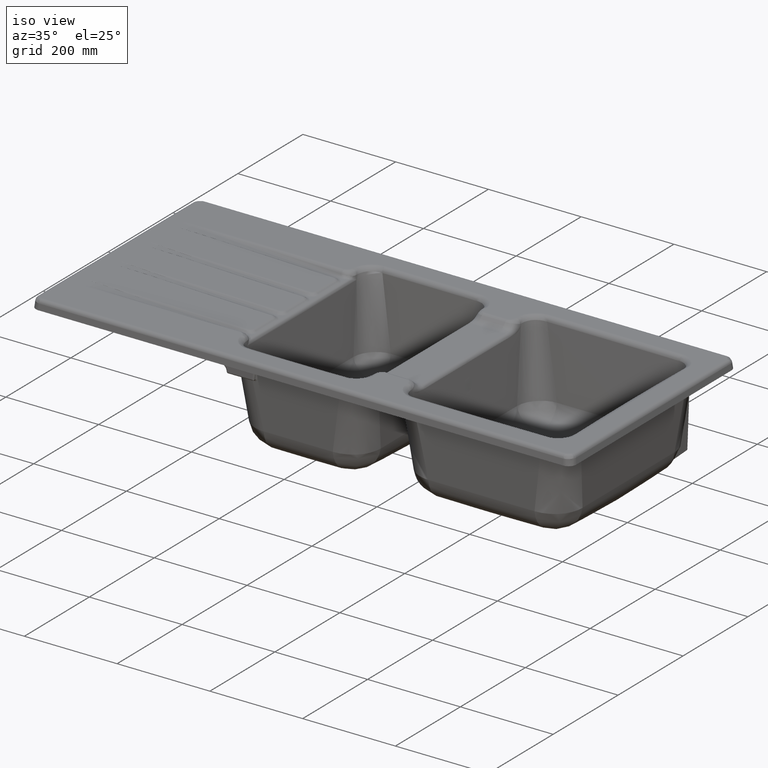
[diagram: clean part render]
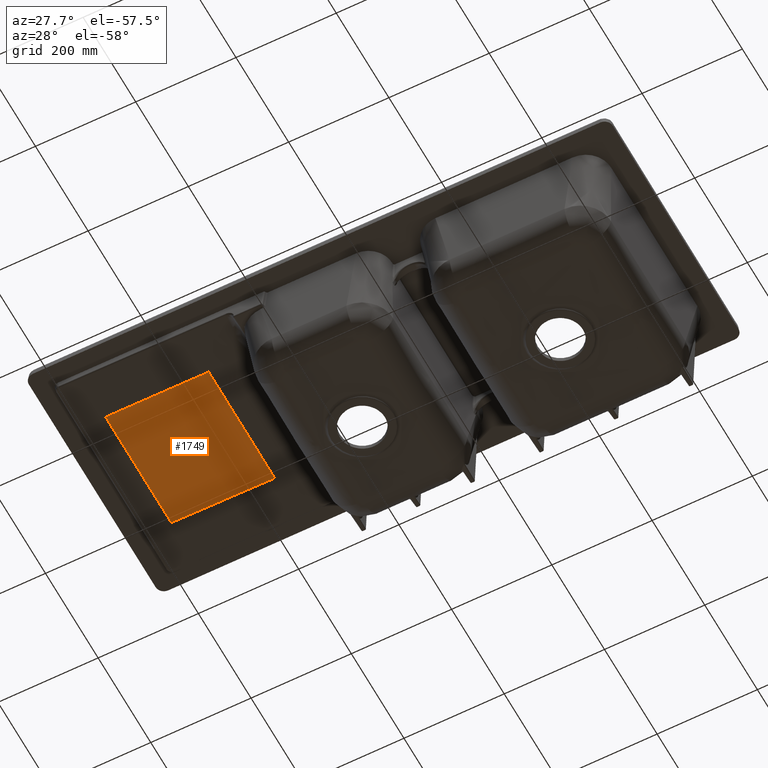
[diagram: tour spotlight — one face highlighted and labeled with its STEP entity id]
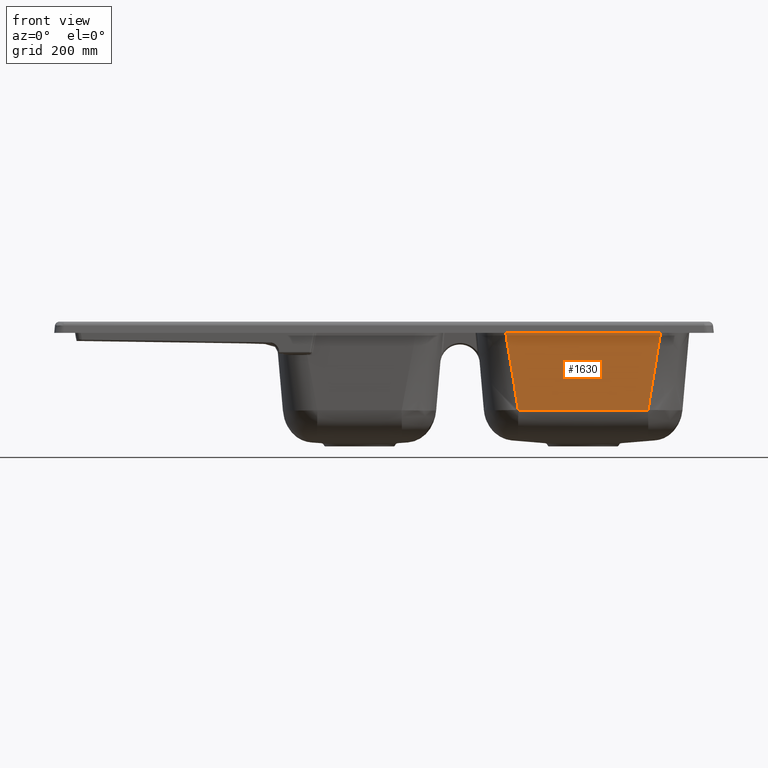
[diagram: tour spotlight — one face highlighted and labeled with its STEP entity id]
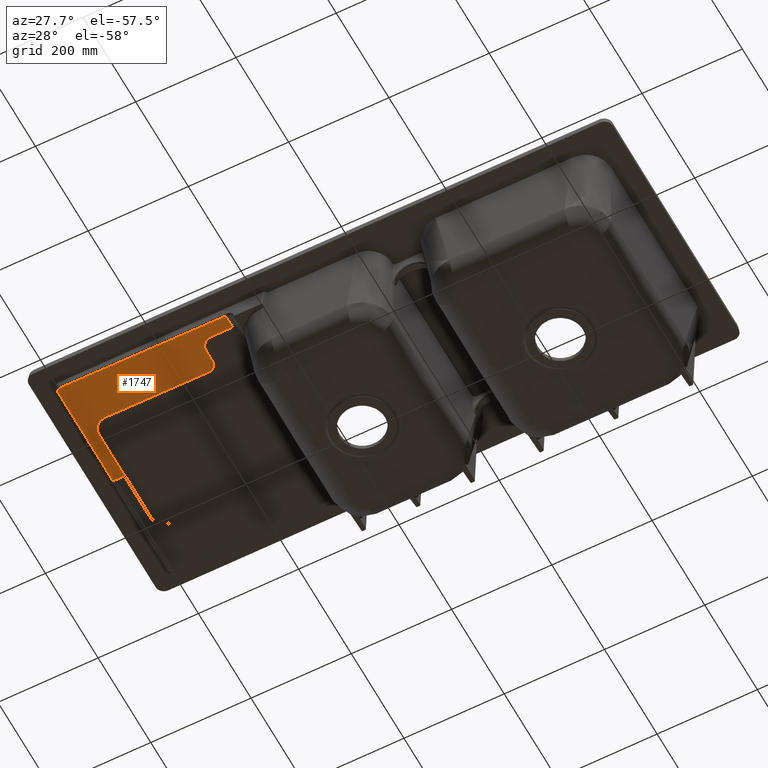
[diagram: tour spotlight — one face highlighted and labeled with its STEP entity id]
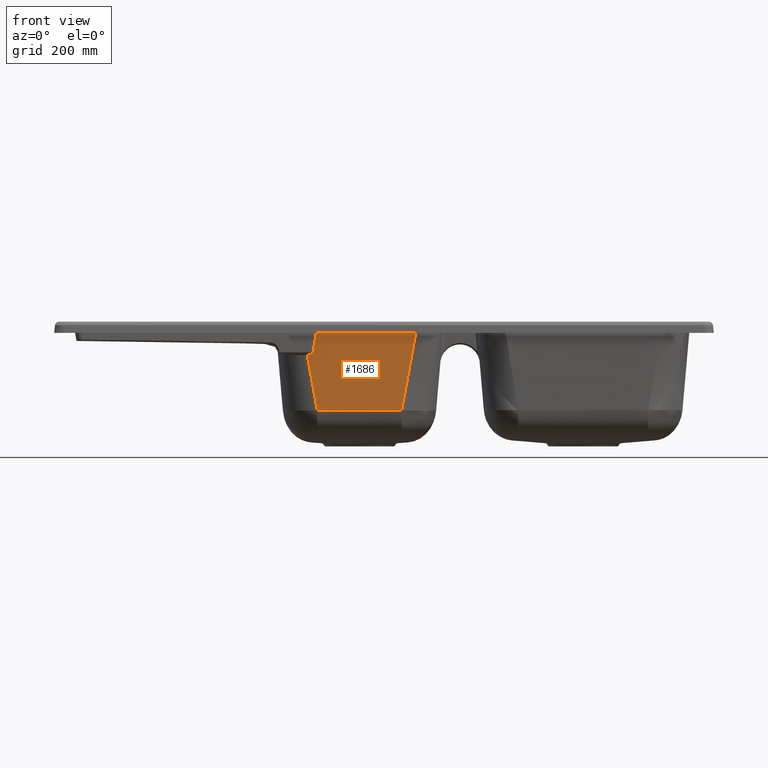
[diagram: tour spotlight — one face highlighted and labeled with its STEP entity id]
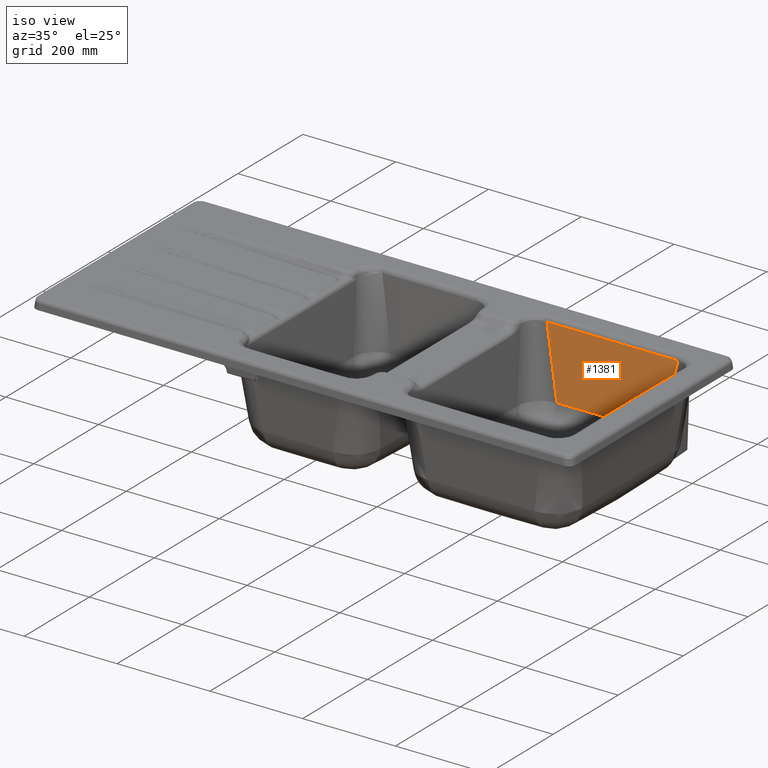
[diagram: tour spotlight — one face highlighted and labeled with its STEP entity id]
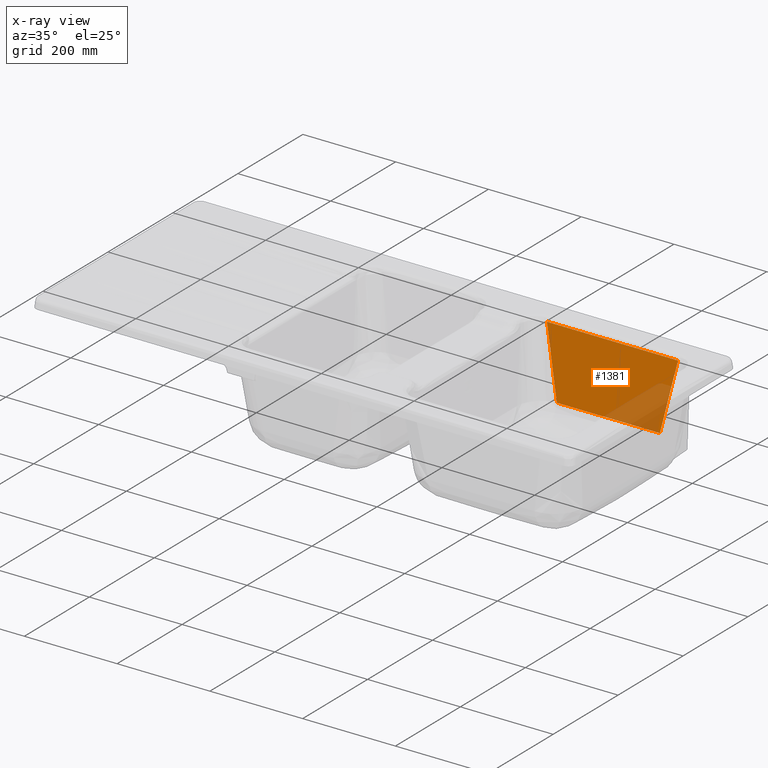
[diagram: x-ray of the same camera — body ghosted, this tour face saturated]
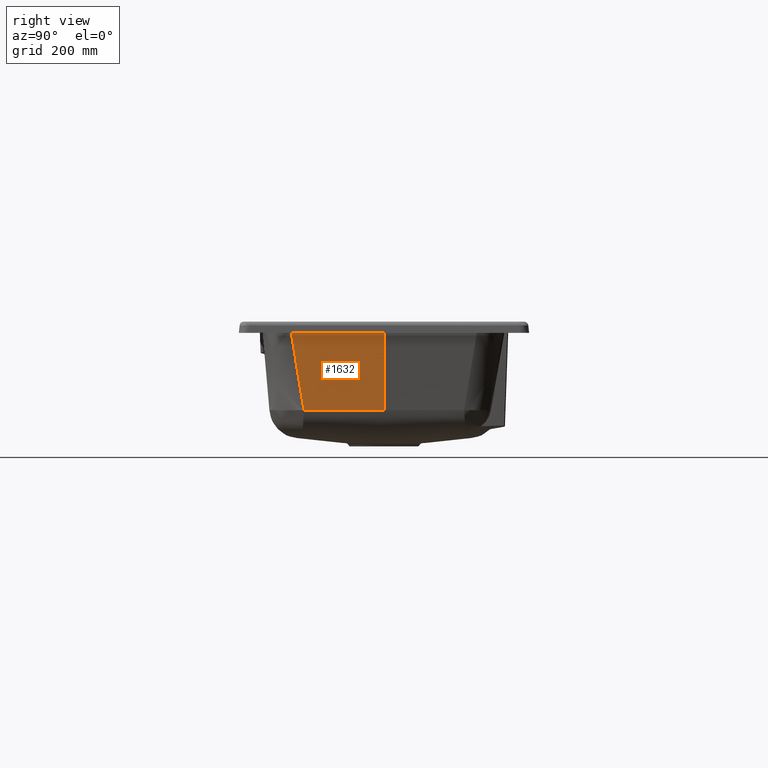
[diagram: tour spotlight — one face highlighted and labeled with its STEP entity id]
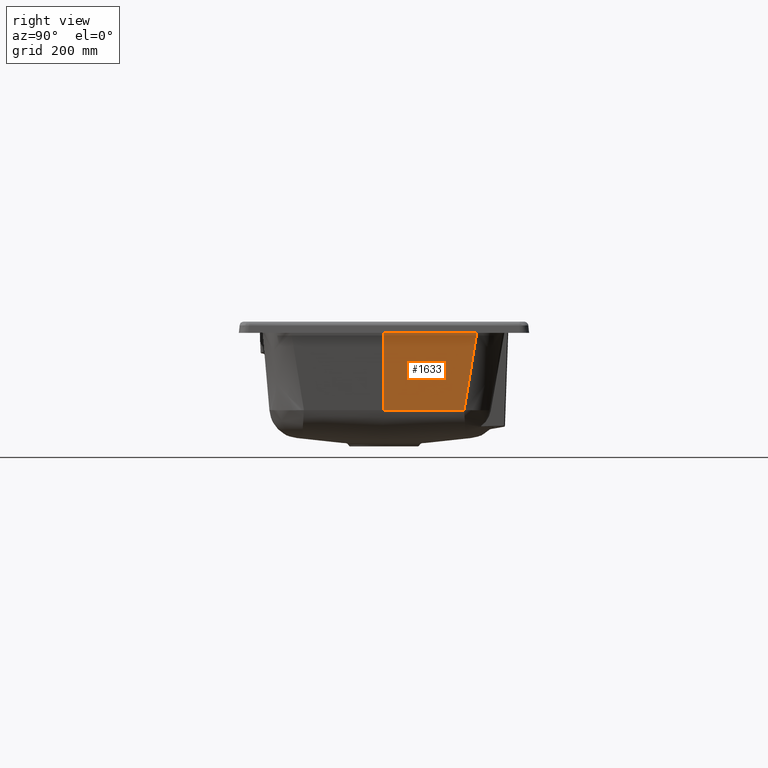
[diagram: tour spotlight — one face highlighted and labeled with its STEP entity id]
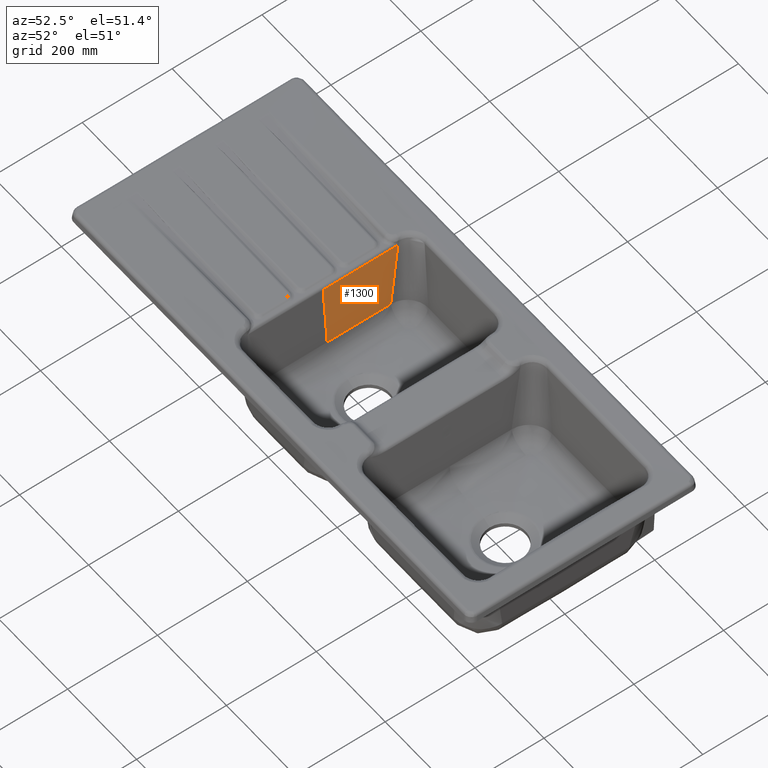
[diagram: tour spotlight — one face highlighted and labeled with its STEP entity id]
A machine part: a face-by-face anatomy tour. The part has 528 B-rep faces; the first image is the clean iso view, then the 8 largest visible faces are spotlighted one at a time (largest first), each with its STEP entity span.

Face 1 — auxiliary view, entity #1749. In plain terms, the highlighted face is a freeform B-spline surface patch.
Definition (entity closure, byte-faithful):
#1749=ADVANCED_FACE('',(#2377),#1852,.F.);
#1852=B_SPLINE_SURFACE_WITH_KNOTS('',3,1,((#44874,#44875),(#44876,#44877),
(#44878,#44879),(#44880,#44881)),.UNSPECIFIED.,.F.,.F.,.F.,(4,4),(2,2),
(0.,1.),(0.,1.),.UNSPECIFIED.);
#2377=FACE_OUTER_BOUND('',#2904,.T.);
#2904=EDGE_LOOP('',(#5515,#5516,#5517,#5518,#5519,#5520));
#5515=ORIENTED_EDGE('',*,*,#7669,.T.);
#5516=ORIENTED_EDGE('',*,*,#7668,.T.);
#5517=ORIENTED_EDGE('',*,*,#6366,.T.);
#5518=ORIENTED_EDGE('',*,*,#7674,.T.);
#5519=ORIENTED_EDGE('',*,*,#7673,.T.);
#5520=ORIENTED_EDGE('',*,*,#7677,.T.);
#5569=VERTEX_POINT('',#10573);
#5570=VERTEX_POINT('',#10576);
#6347=VERTEX_POINT('',#44812);
#6348=VERTEX_POINT('',#44817);
#6351=VERTEX_POINT('',#44844);
#6352=VERTEX_POINT('',#44845);
#6366=EDGE_CURVE('',#5570,#5569,#7690,.T.);
#7668=EDGE_CURVE('',#6347,#5570,#8433,.T.);
#7669=EDGE_CURVE('',#6348,#6347,#8434,.T.);
#7673=EDGE_CURVE('',#6351,#6352,#8438,.T.);
#7674=EDGE_CURVE('',#5569,#6351,#8439,.T.);
#7677=EDGE_CURVE('',#6352,#6348,#8442,.T.);
#7690=B_SPLINE_CURVE_WITH_KNOTS('',1,(#10574,#10575),.UNSPECIFIED.,.F.,
 .F.,(2,2),(0.,1.),.UNSPECIFIED.);
#8433=B_SPLINE_CURVE_WITH_KNOTS('',3,(#44808,#44809,#44810,#44811),
 .UNSPECIFIED.,.F.,.F.,(4,4),(0.,1.),.UNSPECIFIED.);
#8434=B_SPLINE_CURVE_WITH_KNOTS('',3,(#44813,#44814,#44815,#44816),
 .UNSPECIFIED.,.F.,.F.,(4,4),(0.,1.),.UNSPECIFIED.);
#8438=B_SPLINE_CURVE_WITH_KNOTS('',3,(#44840,#44841,#44842,#44843),
 .UNSPECIFIED.,.F.,.F.,(4,4),(0.,1.),.UNSPECIFIED.);
#8439=B_SPLINE_CURVE_WITH_KNOTS('',3,(#44846,#44847,#44848,#44849),
 .UNSPECIFIED.,.F.,.F.,(4,4),(0.,1.),.UNSPECIFIED.);
#8442=B_SPLINE_CURVE_WITH_KNOTS('',1,(#44871,#44872),.UNSPECIFIED.,.F.,
 .F.,(2,2),(0.,1.),.UNSPECIFIED.);
#10573=CARTESIAN_POINT('',(-408.689893128903,-125.33378923791,-47.9270491331618));
#10574=CARTESIAN_POINT('',(-408.689892406793,125.333789237932,-47.9269995190599));
#10575=CARTESIAN_POINT('',(-408.689892406793,-125.333789237932,-47.9269995190599));
#10576=CARTESIAN_POINT('',(-408.689892310452,125.333789237929,-47.9269928997484));
#44808=CARTESIAN_POINT('',(-420.123017928006,125.303485163514,-47.7606064515539));
#44809=CARTESIAN_POINT('',(-416.311976086068,125.313586505672,-47.8160707065307));
#44810=CARTESIAN_POINT('',(-412.500934245643,125.323687863605,-47.8715350610624));
#44811=CARTESIAN_POINT('',(-408.689892406793,125.333789237932,-47.9269995190599));
#44812=CARTESIAN_POINT('',(-420.123017928196,125.303485165531,-47.7606064642933));
#44813=CARTESIAN_POINT('',(-614.472119848995,124.788364539833,-44.9322007714213));
#44814=CARTESIAN_POINT('',(-549.68908563906,124.960068885155,-45.874986703346));
#44815=CARTESIAN_POINT('',(-484.906051564895,125.131774745223,-46.8177821938238));
#44816=CARTESIAN_POINT('',(-420.123017928006,125.303485163514,-47.7606064515539));
#44817=CARTESIAN_POINT('',(-614.472123814162,124.788364539233,-44.932473238942));
#44840=CARTESIAN_POINT('',(-420.122999999618,-125.303485211029,-47.7606067124758));
#44841=CARTESIAN_POINT('',(-484.906039564708,-125.131774777,-46.8177823684633));
#44842=CARTESIAN_POINT('',(-549.689079554017,-124.960068901313,-45.8749867919011));
#44843=CARTESIAN_POINT('',(-614.472119693785,-124.788364540243,-44.9322007736801));
#44844=CARTESIAN_POINT('',(-420.122999999804,-125.303485211029,-47.7606067252153));
#44845=CARTESIAN_POINT('',(-614.472119721859,-124.788364540084,-44.9321987002215));
#44846=CARTESIAN_POINT('',(-408.689892406793,-125.333789237932,-47.9269995190599));
#44847=CARTESIAN_POINT('',(-412.500928269563,-125.323687879443,-47.871535148036));
#44848=CARTESIAN_POINT('',(-416.311964133857,-125.313586537348,-47.8160708804782));
#44849=CARTESIAN_POINT('',(-420.122999999618,-125.303485211029,-47.7606067124758));
#44871=CARTESIAN_POINT('',(-614.472119693785,-124.788364540243,-44.9322007736801));
#44872=CARTESIAN_POINT('',(-614.472119848995,124.788364539833,-44.9322007714213));
#44874=CARTESIAN_POINT('',(-408.689892406793,125.333789237932,-47.9269995190599));
#44875=CARTESIAN_POINT('',(-408.689892406793,-125.333789237932,-47.9269995190599));
#44876=CARTESIAN_POINT('',(-477.283967830041,125.151976898481,-46.9287073522297));
#44877=CARTESIAN_POINT('',(-477.283967783794,-125.151976898567,-46.928707352902));
#44878=CARTESIAN_POINT('',(-545.878043763411,124.970169870054,-45.9304487037008));
#44879=CARTESIAN_POINT('',(-545.878043654449,-124.970169870375,-45.9304487052862));
#44880=CARTESIAN_POINT('',(-614.472119848995,124.788364539833,-44.9322007714213));
#44881=CARTESIAN_POINT('',(-614.472119693785,-124.788364540243,-44.9322007736801));

Face 2 — front view, entity #1630. In plain terms, the highlighted face is a freeform B-spline surface patch.
Definition (entity closure, byte-faithful):
#181=(
BOUNDED_CURVE()
B_SPLINE_CURVE(3,(#41470,#41471,#41472,#41473,#41474,#41475,#41476,#41477),
 .UNSPECIFIED.,.F.,.F.)
B_SPLINE_CURVE_WITH_KNOTS((4,2,2,4),(0.,0.225562199878895,0.633193597964943,
1.),.UNSPECIFIED.)
CURVE()
GEOMETRIC_REPRESENTATION_ITEM()
RATIONAL_B_SPLINE_CURVE((0.99999999349233,0.99999999349224,0.999999993492136,
0.999999993491828,0.999999993491607,0.999999993491236,0.999999993491089,
0.999999993490993))
REPRESENTATION_ITEM('')
);
#1630=ADVANCED_FACE('',(#2259),#1832,.T.);
#1832=B_SPLINE_SURFACE_WITH_KNOTS('',3,3,((#41483,#41484,#41485,#41486,
#41487,#41488),(#41489,#41490,#41491,#41492,#41493,#41494),(#41495,#41496,
#41497,#41498,#41499,#41500),(#41501,#41502,#41503,#41504,#41505,#41506)),
 .UNSPECIFIED.,.F.,.F.,.F.,(4,4),(4,2,4),(0.,1.),(0.,0.5,1.),
 .UNSPECIFIED.);
#2259=FACE_OUTER_BOUND('',#2784,.T.);
#2784=EDGE_LOOP('',(#4847,#4848,#4849,#4850));
#4847=ORIENTED_EDGE('',*,*,#7416,.T.);
#4848=ORIENTED_EDGE('',*,*,#7179,.T.);
#4849=ORIENTED_EDGE('',*,*,#7418,.F.);
#4850=ORIENTED_EDGE('',*,*,#7419,.F.);
#6087=VERTEX_POINT('',#36172);
#6088=VERTEX_POINT('',#36310);
#6214=VERTEX_POINT('',#41429);
#6215=VERTEX_POINT('',#41478);
#7179=EDGE_CURVE('',#6087,#6088,#8167,.T.);
#7416=EDGE_CURVE('',#6214,#6087,#8294,.T.);
#7418=EDGE_CURVE('',#6215,#6088,#181,.T.);
#7419=EDGE_CURVE('',#6214,#6215,#8296,.T.);
#8167=B_SPLINE_CURVE_WITH_KNOTS('',3,(#36311,#36312,#36313,#36314),
 .UNSPECIFIED.,.F.,.F.,(4,4),(0.,1.),.UNSPECIFIED.);
#8294=B_SPLINE_CURVE_WITH_KNOTS('',3,(#41425,#41426,#41427,#41428),
 .UNSPECIFIED.,.F.,.F.,(4,4),(0.,1.),.UNSPECIFIED.);
#8296=B_SPLINE_CURVE_WITH_KNOTS('',3,(#41479,#41480,#41481,#41482),
 .UNSPECIFIED.,.F.,.F.,(4,4),(0.,1.),.UNSPECIFIED.);
#36172=CARTESIAN_POINT('',(112.459807367242,-202.439209609099,-166.044550466509));
#36310=CARTESIAN_POINT('',(341.530393634361,-202.440486088729,-166.032119094601));
#36311=CARTESIAN_POINT('',(112.461845172509,-202.439239723092,-166.044193199888));
#36312=CARTESIAN_POINT('',(188.817011544156,-202.438840124954,-166.052741746921));
#36313=CARTESIAN_POINT('',(265.173055118296,-202.439629196764,-166.043059400273));
#36314=CARTESIAN_POINT('',(341.529495791817,-202.440504836205,-166.032039889956));
#41425=CARTESIAN_POINT('',(90.2645485991348,-214.339335599255,-29.982789399763));
#41426=CARTESIAN_POINT('',(97.9253532743446,-210.166172336554,-77.6969693504617));
#41427=CARTESIAN_POINT('',(105.322859358896,-206.199468728452,-123.050877257129));
#41428=CARTESIAN_POINT('',(112.461803919713,-202.439262836043,-166.043928933563));
#41429=CARTESIAN_POINT('',(90.2643029888959,-214.339332748114,-29.9828214126373));
#41470=CARTESIAN_POINT('',(363.721403165962,-214.338906499248,-29.9879017950095));
#41471=CARTESIAN_POINT('',(362.021449092177,-213.412292264934,-40.5826126718827));
#41472=CARTESIAN_POINT('',(360.328636524126,-212.492097121985,-51.1039383023201));
#41473=CARTESIAN_POINT('',(355.595436742081,-209.931116775322,-80.3856910682216));
#41474=CARTESIAN_POINT('',(352.571963029036,-208.30620819723,-98.9646033527016));
#41475=CARTESIAN_POINT('',(346.872682349597,-205.264290193225,-133.745303349023));
#41476=CARTESIAN_POINT('',(344.192386250499,-203.842757717072,-149.998810939892));
#41477=CARTESIAN_POINT('',(341.531248758863,-202.440470657535,-166.032225191096));
#41478=CARTESIAN_POINT('',(363.721400735266,-214.338906599204,-29.9878989836473));
#41479=CARTESIAN_POINT('',(90.2640524711998,-214.33933288775,-29.9828118021615));
#41480=CARTESIAN_POINT('',(181.416502215545,-214.339190955206,-29.9845033582816));
#41481=CARTESIAN_POINT('',(272.568951959891,-214.339049022662,-29.9861949144017));
#41482=CARTESIAN_POINT('',(363.721401704237,-214.338907090118,-29.9878864705217));
#41483=CARTESIAN_POINT('',(88.2015301611169,-214.608088741924,-26.9099741646261));
#41484=CARTESIAN_POINT('',(134.465384894191,-214.608051243262,-26.9105868647322));
#41485=CARTESIAN_POINT('',(180.729271228941,-214.608086755127,-26.9100648575448));
#41486=CARTESIAN_POINT('',(273.256988263906,-214.608132509296,-26.9094130619245));
#41487=CARTESIAN_POINT('',(319.520858411802,-214.608058654456,-26.9105912622436));
#41488=CARTESIAN_POINT('',(365.784724318871,-214.608095653565,-26.9100457303056));
#41489=CARTESIAN_POINT('',(91.4615612473151,-210.527658342753,-73.5638208640669));
#41490=CARTESIAN_POINT('',(136.638380887757,-210.527385629739,-73.5682058153495));
#41491=CARTESIAN_POINT('',(181.815418904756,-210.527639314903,-73.5645065612051));
#41492=CARTESIAN_POINT('',(272.169110488481,-210.527964532275,-73.5599020978855));
#41493=CARTESIAN_POINT('',(317.346036649706,-210.527429662449,-73.5683162136972));
#41494=CARTESIAN_POINT('',(362.522933505672,-210.527694099425,-73.5644491220936));
#41495=CARTESIAN_POINT('',(94.7215903241378,-206.447227931308,-120.217667702845));
#41496=CARTESIAN_POINT('',(138.811370888309,-206.446719983501,-120.225825135056));
#41497=CARTESIAN_POINT('',(182.901569697347,-206.447191876012,-120.218948248672));
#41498=CARTESIAN_POINT('',(271.081231001329,-206.447796553899,-120.210391150064));
#41499=CARTESIAN_POINT('',(315.171215578751,-206.446800668953,-120.226041182163));
#41500=CARTESIAN_POINT('',(359.261144030404,-206.447292537126,-120.218852606709));
#41501=CARTESIAN_POINT('',(97.9816168968218,-202.366797504541,-166.871514715265));
#41502=CARTESIAN_POINT('',(140.984353419936,-202.366054296362,-166.883444914738));
#41503=CARTESIAN_POINT('',(183.987724373924,-202.366744438757,-166.873389915957));
#41504=CARTESIAN_POINT('',(269.993349381104,-202.367628573852,-166.860880222454));
#41505=CARTESIAN_POINT('',(312.996395369049,-202.366171673601,-166.883766171824));
#41506=CARTESIAN_POINT('',(355.99935622249,-202.36689096465,-166.873256207005));

Face 3 — auxiliary view, entity #1747. In plain terms, the highlighted face is a freeform B-spline surface patch.
Definition (entity closure, byte-faithful):
#1747=ADVANCED_FACE('',(#2375),#1851,.F.);
#1851=B_SPLINE_SURFACE_WITH_KNOTS('',1,1,((#44867,#44868),(#44869,#44870)),
 .UNSPECIFIED.,.F.,.F.,.F.,(2,2),(2,2),(0.,1.),(0.,1.),.UNSPECIFIED.);
#2375=FACE_OUTER_BOUND('',#2902,.T.);
#2902=EDGE_LOOP('',(#5496,#5497,#5498,#5499,#5500,#5501,#5502,#5503,#5504,
#5505,#5506,#5507,#5508,#5509));
#5496=ORIENTED_EDGE('',*,*,#7673,.F.);
#5497=ORIENTED_EDGE('',*,*,#7674,.F.);
#5498=ORIENTED_EDGE('',*,*,#6365,.T.);
#5499=ORIENTED_EDGE('',*,*,#6364,.T.);
#5500=ORIENTED_EDGE('',*,*,#6363,.T.);
#5501=ORIENTED_EDGE('',*,*,#7659,.T.);
#5502=ORIENTED_EDGE('',*,*,#7660,.T.);
#5503=ORIENTED_EDGE('',*,*,#7662,.T.);
#5504=ORIENTED_EDGE('',*,*,#7664,.T.);
#5505=ORIENTED_EDGE('',*,*,#7666,.T.);
#5506=ORIENTED_EDGE('',*,*,#7667,.T.);
#5507=ORIENTED_EDGE('',*,*,#7672,.T.);
#5508=ORIENTED_EDGE('',*,*,#7675,.F.);
#5509=ORIENTED_EDGE('',*,*,#7676,.F.);
#5565=VERTEX_POINT('',#10547);
#5567=VERTEX_POINT('',#10557);
#5568=VERTEX_POINT('',#10562);
#5569=VERTEX_POINT('',#10573);
#6320=VERTEX_POINT('',#44269);
#6329=VERTEX_POINT('',#44432);
#6343=VERTEX_POINT('',#44642);
#6344=VERTEX_POINT('',#44718);
#6345=VERTEX_POINT('',#44740);
#6346=VERTEX_POINT('',#44770);
#6350=VERTEX_POINT('',#44833);
#6351=VERTEX_POINT('',#44844);
#6352=VERTEX_POINT('',#44845);
#6353=VERTEX_POINT('',#44856);
#6363=EDGE_CURVE('',#5567,#5565,#7687,.T.);
#6364=EDGE_CURVE('',#5568,#5567,#7688,.T.);
#6365=EDGE_CURVE('',#5569,#5568,#7689,.T.);
#7659=EDGE_CURVE('',#5565,#6343,#8427,.T.);
#7660=EDGE_CURVE('',#6343,#6320,#8428,.T.);
#7662=EDGE_CURVE('',#6320,#6344,#8429,.T.);
#7664=EDGE_CURVE('',#6344,#6345,#8430,.T.);
#7666=EDGE_CURVE('',#6345,#6346,#8431,.T.);
#7667=EDGE_CURVE('',#6346,#6329,#8432,.T.);
#7672=EDGE_CURVE('',#6329,#6350,#8437,.T.);
#7673=EDGE_CURVE('',#6351,#6352,#8438,.T.);
#7674=EDGE_CURVE('',#5569,#6351,#8439,.T.);
#7675=EDGE_CURVE('',#6353,#6350,#8440,.T.);
#7676=EDGE_CURVE('',#6352,#6353,#8441,.T.);
#7687=B_SPLINE_CURVE_WITH_KNOTS('',3,(#10549,#10550,#10551,#10552,#10553,
#10554,#10555,#10556),.UNSPECIFIED.,.F.,.F.,(4,2,2,4),(0.,0.25,0.499999999999999,
1.),.UNSPECIFIED.);
#7688=B_SPLINE_CURVE_WITH_KNOTS('',3,(#10558,#10559,#10560,#10561),
 .UNSPECIFIED.,.F.,.F.,(4,4),(0.,1.),.UNSPECIFIED.);
#7689=B_SPLINE_CURVE_WITH_KNOTS('',3,(#10563,#10564,#10565,#10566,#10567,
#10568,#10569,#10570,#10571,#10572),.UNSPECIFIED.,.F.,.F.,(4,2,2,2,4),(0.,
0.500000000000001,0.749999999999999,0.874999999999999,1.),.UNSPECIFIED.);
#8427=B_SPLINE_CURVE_WITH_KNOTS('',3,(#44643,#44644,#44645,#44646,#44647,
#44648,#44649,#44650,#44651,#44652,#44653,#44654,#44655,#44656,#44657,#44658,
#44659,#44660),.UNSPECIFIED.,.F.,.F.,(4,2,2,1,2,2,1,2,2,4),(0.,0.500000000000036,
0.562500000000041,0.625000000000047,0.750000000000054,0.765625000000052,
0.781250000000051,0.812500000000046,0.87500000000003,1.),.UNSPECIFIED.);
#8428=B_SPLINE_CURVE_WITH_KNOTS('',3,(#44701,#44702,#44703,#44704),
 .UNSPECIFIED.,.F.,.F.,(4,4),(0.,1.),.UNSPECIFIED.);
#8429=B_SPLINE_CURVE_WITH_KNOTS('',3,(#44719,#44720,#44721,#44722,#44723,
#44724,#44725,#44726),.UNSPECIFIED.,.F.,.F.,(4,2,2,4),(0.,0.0731708789618733,
0.365854394809371,1.),.UNSPECIFIED.);
#8430=B_SPLINE_CURVE_WITH_KNOTS('',3,(#44741,#44742,#44743,#44744,#44745,
#44746,#44747,#44748,#44749,#44750,#44751,#44752,#44753,#44754,#44755,#44756),
 .UNSPECIFIED.,.F.,.F.,(4,2,2,2,2,2,2,4),(0.,0.0241022206798954,0.120511103403258,
0.30843506315268,0.332537283833521,0.428946166556884,0.814581697450349,
1.),.UNSPECIFIED.);
#8431=B_SPLINE_CURVE_WITH_KNOTS('',3,(#44771,#44772,#44773,#44774,#44775,
#44776),.UNSPECIFIED.,.F.,.F.,(4,2,4),(0.,0.5,1.),.UNSPECIFIED.);
#8432=B_SPLINE_CURVE_WITH_KNOTS('',3,(#44795,#44796,#44797,#44798,#44799,
#44800,#44801,#44802,#44803,#44804,#44805,#44806),.UNSPECIFIED.,.F.,.F.,
(4,2,2,2,2,4),(0.,0.0287199760439131,0.143599880219566,0.603119496922177,
0.959761153446778,1.),.UNSPECIFIED.);
#8437=B_SPLINE_CURVE_WITH_KNOTS('',1,(#44834,#44835),.UNSPECIFIED.,.F.,
 .F.,(2,2),(0.,1.),.UNSPECIFIED.);
#8438=B_SPLINE_CURVE_WITH_KNOTS('',3,(#44840,#44841,#44842,#44843),
 .UNSPECIFIED.,.F.,.F.,(4,4),(0.,1.),.UNSPECIFIED.);
#8439=B_SPLINE_CURVE_WITH_KNOTS('',3,(#44846,#44847,#44848,#44849),
 .UNSPECIFIED.,.F.,.F.,(4,4),(0.,1.),.UNSPECIFIED.);
#8440=B_SPLINE_CURVE_WITH_KNOTS('',3,(#44850,#44851,#44852,#44853,#44854,
#44855),.UNSPECIFIED.,.F.,.F.,(4,2,4),(0.,0.569780044677556,1.),
 .UNSPECIFIED.);
#8441=B_SPLINE_CURVE_WITH_KNOTS('',3,(#44857,#44858,#44859,#44860,#44861,
#44862,#44863,#44864,#44865,#44866),.UNSPECIFIED.,.F.,.F.,(4,2,2,2,4),(0.,
0.25,0.5,0.75,1.),.UNSPECIFIED.);
#10547=CARTESIAN_POINT('',(-369.44064009016,-189.510711300001,-48.4982976887639));
#10549=CARTESIAN_POINT('',(-392.032475789935,-166.780404094525,-48.1694090049035));
#10550=CARTESIAN_POINT('',(-392.035450078592,-169.790749133587,-48.1693644813221));
#10551=CARTESIAN_POINT('',(-391.463920962763,-172.723970230628,-48.1776814059655));
#10552=CARTESIAN_POINT('',(-389.232857668857,-178.218622378659,-48.2101507563321));
#10553=CARTESIAN_POINT('',(-387.548752008344,-180.766900010541,-48.2346608198747));
#10554=CARTESIAN_POINT('',(-381.345549293365,-187.021659638268,-48.32494257183));
#10555=CARTESIAN_POINT('',(-375.368646050859,-189.495498039218,-48.411932998398));
#10556=CARTESIAN_POINT('',(-369.440638856103,-189.510711300039,-48.498212900352));
#10557=CARTESIAN_POINT('',(-392.033424095511,-166.780410107431,-48.1694699258209));
#10558=CARTESIAN_POINT('',(-392.005768799407,-142.136063286277,-48.1698078073031));
#10559=CARTESIAN_POINT('',(-392.015303969967,-150.350283758722,-48.1696656658858));
#10560=CARTESIAN_POINT('',(-392.024837779118,-158.565068064014,-48.169523541102));
#10561=CARTESIAN_POINT('',(-392.034370226861,-166.780416202155,-48.1693814329517));
#10562=CARTESIAN_POINT('',(-392.00576973284,-142.136063286248,-48.1698719407147));
#10563=CARTESIAN_POINT('',(-408.689892406793,-125.333789237932,-47.9269995190599));
#10564=CARTESIAN_POINT('',(-404.254890212356,-125.345544453226,-47.9915448595031));
#10565=CARTESIAN_POINT('',(-399.954116038562,-127.129124028864,-48.0541358897364));
#10566=CARTESIAN_POINT('',(-395.290578404019,-131.821150858146,-48.1220056271104));
#10567=CARTESIAN_POINT('',(-394.088809498444,-133.640009862238,-48.1394951176112));
#10568=CARTESIAN_POINT('',(-392.826269394813,-136.755192990139,-48.1578685778408));
#10569=CARTESIAN_POINT('',(-392.540211059122,-137.739392858634,-48.1620314166631));
#10570=CARTESIAN_POINT('',(-392.126431879397,-139.877800721219,-48.1680526156597));
#10571=CARTESIAN_POINT('',(-392.017249319127,-140.986267476174,-48.1696411923884));
#10572=CARTESIAN_POINT('',(-392.005768799407,-142.136063286277,-48.1698078073031));
#10573=CARTESIAN_POINT('',(-408.689893128903,-125.33378923791,-47.9270491331618));
#44269=CARTESIAN_POINT('',(-327.188627236214,-215.690302153204,-49.1131954496732));
#44432=CARTESIAN_POINT('',(-665.373143224557,-1.78861197382115E-9,-44.1917292108907));
#44642=CARTESIAN_POINT('',(-327.188579297698,-189.618565540117,-49.1116391908251));
#44643=CARTESIAN_POINT('',(-369.440638856103,-189.510711300038,-48.498212900352));
#44644=CARTESIAN_POINT('',(-362.209350072055,-189.52926922359,-48.6034615727627));
#44645=CARTESIAN_POINT('',(-355.167303719851,-189.546191328388,-48.705956680673));
#44646=CARTESIAN_POINT('',(-347.457892051851,-189.566394161849,-48.8181660056818));
#44647=CARTESIAN_POINT('',(-346.539472128906,-189.568842852122,-48.8315334829583));
#44648=CARTESIAN_POINT('',(-344.770772662132,-189.573624427498,-48.8572766920917));
#44649=CARTESIAN_POINT('',(-342.124045239752,-189.58087449375,-48.8957995345624));
#44650=CARTESIAN_POINT('',(-339.496283376584,-189.588264126554,-48.9340464605853));
#44651=CARTESIAN_POINT('',(-337.534944974053,-189.593786991937,-48.9625936942488));
#44652=CARTESIAN_POINT('',(-337.248891428868,-189.59454083847,-48.9667571979587));
#44653=CARTESIAN_POINT('',(-336.751086022848,-189.595754059517,-48.9740027483993));
#44654=CARTESIAN_POINT('',(-336.010552520545,-189.597428564231,-48.9847812062037));
#44655=CARTESIAN_POINT('',(-335.288542644243,-189.59874750683,-48.9952900628106));
#44656=CARTESIAN_POINT('',(-333.869220556466,-189.601119701323,-49.0159483139089));
#44657=CARTESIAN_POINT('',(-332.955936045848,-189.60234906368,-49.0292411985507));
#44658=CARTESIAN_POINT('',(-330.314869320369,-189.606570095723,-49.0676820510889));
#44659=CARTESIAN_POINT('',(-328.685873828677,-189.610129168617,-49.0913922186146));
#44660=CARTESIAN_POINT('',(-327.188584761144,-189.61825778594,-49.1131854314666));
#44701=CARTESIAN_POINT('',(-327.188633922597,-189.619145743935,-49.1131847162784));
#44702=CARTESIAN_POINT('',(-327.188631694005,-198.309531606144,-49.1131882934956));
#44703=CARTESIAN_POINT('',(-327.188629465011,-206.999917468352,-49.1131918712969));
#44704=CARTESIAN_POINT('',(-327.188627235614,-215.69030333056,-49.1131954496824));
#44718=CARTESIAN_POINT('',(-409.177250155446,-215.731978755772,-47.9198532835658));
#44719=CARTESIAN_POINT('',(-327.188627235614,-215.690303330561,-49.1131954496824));
#44720=CARTESIAN_POINT('',(-329.188353755111,-215.691319857188,-49.0840884459718));
#44721=CARTESIAN_POINT('',(-331.188080275935,-215.692336379361,-49.0549815333132));
#44722=CARTESIAN_POINT('',(-341.186712886414,-215.697418968901,-48.9094474060162));
#44723=CARTESIAN_POINT('',(-349.185618995084,-215.701484972477,-48.7930214955683));
#44724=CARTESIAN_POINT('',(-374.515433393424,-215.714360440226,-48.4243439737906));
#44725=CARTESIAN_POINT('',(-391.846341745872,-215.723169693841,-48.1720966681856));
#44726=CARTESIAN_POINT('',(-409.177250155485,-215.731978755772,-47.9198532835651));
#44740=CARTESIAN_POINT('',(-658.082933379523,-215.858485188473,-44.2973278052728));
#44741=CARTESIAN_POINT('',(-409.177250155485,-215.731978755772,-47.9198532835651));
#44742=CARTESIAN_POINT('',(-411.176976702684,-215.732995189221,-47.8907481852829));
#44743=CARTESIAN_POINT('',(-413.176703250655,-215.734011620082,-47.8616431399238));
#44744=CARTESIAN_POINT('',(-423.175335994544,-215.73909376191,-47.7161181683587));
#44745=CARTESIAN_POINT('',(-431.174242201602,-215.743159435522,-47.5996990062734));
#44746=CARTESIAN_POINT('',(-454.76492883977,-215.755149976809,-47.2563531556379));
#44747=CARTESIAN_POINT('',(-470.356709299621,-215.76307474812,-47.0294284384875));
#44748=CARTESIAN_POINT('',(-487.948216352923,-215.772015798086,-46.7734017901597));
#44749=CARTESIAN_POINT('',(-489.947942916657,-215.773032176361,-46.7442978206416));
#44750=CARTESIAN_POINT('',(-499.946575737755,-215.778114059593,-46.5987781395781));
#44751=CARTESIAN_POINT('',(-507.94548200239,-215.782179540173,-46.4823629268271));
#44752=CARTESIAN_POINT('',(-547.940013359901,-215.802506827995,-45.9002892179748));
#44753=CARTESIAN_POINT('',(-579.935638553882,-215.818768296327,-45.43463765708));
#44754=CARTESIAN_POINT('',(-627.315153655665,-215.84284813677,-44.7451020970192));
#44755=CARTESIAN_POINT('',(-642.699043510883,-215.850666685113,-44.5212144907814));
#44756=CARTESIAN_POINT('',(-658.082933379523,-215.858485188473,-44.2973278052728));
#44770=CARTESIAN_POINT('',(-665.165755728092,-208.90730667632,-44.1942653317663));
#44771=CARTESIAN_POINT('',(-658.082933379523,-215.858485188473,-44.2973278052728));
#44772=CARTESIAN_POINT('',(-659.924837488785,-215.859421293294,-44.2705219837564));
#44773=CARTESIAN_POINT('',(-661.762047522593,-215.119539666828,-44.2437861828756));
#44774=CARTESIAN_POINT('',(-664.373216299234,-212.580840446315,-44.2057909002249));
#44775=CARTESIAN_POINT('',(-665.162719949008,-210.750588725197,-44.194305258986));
#44776=CARTESIAN_POINT('',(-665.165755728092,-208.90730667632,-44.1942653317663));
#44795=CARTESIAN_POINT('',(-665.165755728092,-208.90730667632,-44.1942653317663));
#44796=CARTESIAN_POINT('',(-665.16774111606,-206.907369061939,-44.1942410526489));
#44797=CARTESIAN_POINT('',(-665.169726504028,-204.907431447558,-44.1942167735318));
#44798=CARTESIAN_POINT('',(-665.179653443869,-194.907743375654,-44.1940953779474));
#44799=CARTESIAN_POINT('',(-665.187594995747,-186.907992918131,-44.1939982614838));
#44800=CARTESIAN_POINT('',(-665.227302755154,-146.909240630516,-44.1935126791854));
#44801=CARTESIAN_POINT('',(-665.259068962746,-114.910238800423,-44.1931242134092));
#44802=CARTESIAN_POINT('',(-665.315489510522,-58.0762209992856,-44.1924342522846));
#44803=CARTESIAN_POINT('',(-665.340143850679,-33.2412050282405,-44.1921327569114));
#44804=CARTESIAN_POINT('',(-665.367579868771,-5.60412603813032,-44.1917972447291));
#44805=CARTESIAN_POINT('',(-665.370361546666,-2.80206301906522,-44.191763227883));
#44806=CARTESIAN_POINT('',(-665.373143224561,-1.13829349572347E-13,-44.1917292110372));
#44833=CARTESIAN_POINT('',(-641.852063830302,5.17181816775815E-9,-44.534016136226));
#44834=CARTESIAN_POINT('',(-694.694189529174,0.,-43.7650391775439));
#44835=CARTESIAN_POINT('',(-176.539785009015,5.55111512312578E-13,-51.3054017526901));
#44840=CARTESIAN_POINT('',(-420.122999999618,-125.303485211029,-47.7606067124758));
#44841=CARTESIAN_POINT('',(-484.906039564708,-125.131774777,-46.8177823684633));
#44842=CARTESIAN_POINT('',(-549.689079554017,-124.960068901313,-45.8749867919011));
#44843=CARTESIAN_POINT('',(-614.472119693785,-124.788364540243,-44.9322007736801));
#44844=CARTESIAN_POINT('',(-420.122999999804,-125.303485211029,-47.7606067252153));
#44845=CARTESIAN_POINT('',(-614.472119721859,-124.788364540084,-44.9321987002215));
#44846=CARTESIAN_POINT('',(-408.689892406793,-125.333789237932,-47.9269995190599));
#44847=CARTESIAN_POINT('',(-412.500928269563,-125.323687879443,-47.871535148036));
#44848=CARTESIAN_POINT('',(-416.311964133857,-125.313586537348,-47.8160708804782));
#44849=CARTESIAN_POINT('',(-420.122999999618,-125.303485211029,-47.7606067124758));
#44850=CARTESIAN_POINT('',(-641.947982310319,-97.1140040951824,-44.5324066163045));
#44851=CARTESIAN_POINT('',(-641.929764834596,-78.6694635670761,-44.5327123192511));
#44852=CARTESIAN_POINT('',(-641.911547357194,-60.2249230389712,-44.5330180129459));
#44853=CARTESIAN_POINT('',(-641.879574529694,-27.8535883451749,-44.5335545084671));
#44854=CARTESIAN_POINT('',(-641.865819180319,-13.9267941794829,-44.533785314271));
#44855=CARTESIAN_POINT('',(-641.852063829986,-1.37917268383239E-8,-44.5340161147993));
#44856=CARTESIAN_POINT('',(-641.94798231032,-97.1140040951823,-44.5324066163045));
#44857=CARTESIAN_POINT('',(-614.472119788647,-124.788364539823,-44.9321966245689));
#44858=CARTESIAN_POINT('',(-618.112709022676,-124.778715331555,-44.8792158557289));
#44859=CARTESIAN_POINT('',(-621.701158997332,-124.064199132924,-44.8269954105059));
#44860=CARTESIAN_POINT('',(-628.369282329675,-121.30443292591,-44.7299615759394));
#44861=CARTESIAN_POINT('',(-631.442897085908,-119.241153171777,-44.6852363959243));
#44862=CARTESIAN_POINT('',(-636.497300075257,-114.145845493811,-44.6116918603925));
#44863=CARTESIAN_POINT('',(-638.541489067307,-111.040034058324,-44.5819500082714));
#44864=CARTESIAN_POINT('',(-641.244183491849,-104.389886033723,-44.5426328534975));
#44865=CARTESIAN_POINT('',(-641.951575456161,-100.751935337562,-44.5323463206144));
#44866=CARTESIAN_POINT('',(-641.94798231032,-97.1140040951824,-44.5324066163045));
#44867=CARTESIAN_POINT('',(-179.205997005798,-1616.3852642847,-51.2728262073794));
#44868=CARTESIAN_POINT('',(-663.266529190531,-4620.17201690067,-44.2116782445296));
#44869=CARTESIAN_POINT('',(-174.38587971781,1305.80043056221,-51.3317179794168));
#44870=CARTESIAN_POINT('',(-671.558446631903,3732.41623902713,-44.110368321424));

Face 4 — front view, entity #1686. In plain terms, the highlighted planar face has unit normal (-0, -0.9962, -0.0872).
Definition (entity closure, byte-faithful):
#51=ELLIPSE('',#8782,6.02273412164601,5.9998158);
#69=ELLIPSE('',#8872,116.406048570869,5.9998158);
#626=LINE('',#39035,#812);
#628=LINE('',#39062,#814);
#672=LINE('',#42506,#858);
#812=VECTOR('',#9698,1.);
#814=VECTOR('',#9708,1.);
#858=VECTOR('',#9930,1.);
#1208=PLANE('',#8873);
#1686=ADVANCED_FACE('',(#2315),#1208,.T.);
#2315=FACE_OUTER_BOUND('',#2840,.T.);
#2840=EDGE_LOOP('',(#5092,#5093,#5094,#5095,#5096,#5097,#5098,#5099));
#5092=ORIENTED_EDGE('',*,*,#7529,.T.);
#5093=ORIENTED_EDGE('',*,*,#7310,.T.);
#5094=ORIENTED_EDGE('',*,*,#7312,.T.);
#5095=ORIENTED_EDGE('',*,*,#7315,.T.);
#5096=ORIENTED_EDGE('',*,*,#7531,.F.);
#5097=ORIENTED_EDGE('',*,*,#7317,.T.);
#5098=ORIENTED_EDGE('',*,*,#7532,.F.);
#5099=ORIENTED_EDGE('',*,*,#7533,.F.);
#6154=VERTEX_POINT('',#39031);
#6155=VERTEX_POINT('',#39034);
#6156=VERTEX_POINT('',#39038);
#6158=VERTEX_POINT('',#39061);
#6159=VERTEX_POINT('',#39075);
#6161=VERTEX_POINT('',#39083);
#6271=VERTEX_POINT('',#42470);
#6272=VERTEX_POINT('',#42505);
#7310=EDGE_CURVE('',#6154,#6155,#626,.T.);
#7312=EDGE_CURVE('',#6155,#6156,#51,.T.);
#7315=EDGE_CURVE('',#6156,#6158,#628,.T.);
#7317=EDGE_CURVE('',#6161,#6159,#8231,.T.);
#7529=EDGE_CURVE('',#6271,#6154,#69,.T.);
#7531=EDGE_CURVE('',#6161,#6158,#8347,.T.);
#7532=EDGE_CURVE('',#6272,#6159,#8348,.T.);
#7533=EDGE_CURVE('',#6271,#6272,#672,.T.);
#8231=B_SPLINE_CURVE_WITH_KNOTS('',5,(#39077,#39078,#39079,#39080,#39081,
#39082),.UNSPECIFIED.,.F.,.F.,(6,6),(0.,1.),.UNSPECIFIED.);
#8347=B_SPLINE_CURVE_WITH_KNOTS('',3,(#42489,#42490,#42491,#42492,#42493,
#42494,#42495,#42496),.UNSPECIFIED.,.F.,.F.,(4,2,2,4),(0.,0.409539265346779,
0.596016807166448,1.),.UNSPECIFIED.);
#8348=B_SPLINE_CURVE_WITH_KNOTS('',3,(#42497,#42498,#42499,#42500,#42501,
#42502,#42503,#42504),.UNSPECIFIED.,.F.,.F.,(4,2,2,4),(0.,0.403983429378349,
0.590472183969537,1.),.UNSPECIFIED.);
#8782=AXIS2_PLACEMENT_3D('',#39039,#9703,#9704);
#8872=AXIS2_PLACEMENT_3D('',#42469,#9928,#9929);
#8873=AXIS2_PLACEMENT_3D('',#42507,#9931,#9932);
#9698=DIRECTION('',(-0.172971634752001,0.085842027346434,-0.98117886234482));
#9703=DIRECTION('',(7.16850744057105E-16,0.996194698091745,0.0871557427476571));
#9704=DIRECTION('',(8.19364149784619E-15,-0.0871557427476572,0.996194698091746));
#9708=DIRECTION('',(-1.,3.6558265880238E-15,-3.35613492336816E-14));
#9928=DIRECTION('',(7.16440795578421E-16,0.996194698091746,0.0871557427476572));
#9929=DIRECTION('',(0.17374083754647,-0.0858302267970925,0.981043981448646));
#9930=DIRECTION('',(0.999999999826493,1.62356562602744E-6,-1.85574400306842E-5));
#9931=DIRECTION('',(-7.16850744057105E-16,-0.996194698091746,-0.0871557427476572));
#9932=DIRECTION('',(0.,-0.0871557427476571,0.996194698091746));
#39031=CARTESIAN_POINT('',(-247.626620024296,-212.59704799193,-49.893843658475));
#39034=CARTESIAN_POINT('',(-250.137675757778,-211.350866123724,-64.1377675908278));
#39035=CARTESIAN_POINT('',(-250.181712671673,-211.329011569523,-64.3875662883933));
#39038=CARTESIAN_POINT('',(-256.046378635885,-210.917082203217,-69.0959404903197));
#39039=CARTESIAN_POINT('',(-256.046378635885,-211.44199806896,-63.0961246903198));
#39061=CARTESIAN_POINT('',(-260.297770415116,-210.917082203217,-69.0959404903199));
#39062=CARTESIAN_POINT('',(-260.799472123778,-210.917082203217,-69.0959404903199));
#39075=CARTESIAN_POINT('',(-93.5535284377825,-202.387421219983,-166.590411653502));
#39077=CARTESIAN_POINT('',(-242.437073928236,-202.38786445371,-166.585345468823));
#39078=CARTESIAN_POINT('',(-212.660364830147,-202.387775806965,-166.586358705758));
#39079=CARTESIAN_POINT('',(-182.883655732051,-202.387687160219,-166.587371942696));
#39080=CARTESIAN_POINT('',(-153.106946633967,-202.387598513474,-166.58838517963));
#39081=CARTESIAN_POINT('',(-123.330237535872,-202.387509866729,-166.589398416567));
#39082=CARTESIAN_POINT('',(-93.5535284377826,-202.387421219983,-166.590411653502));
#39083=CARTESIAN_POINT('',(-242.437073928236,-202.38786445371,-166.585345468823));
#42469=CARTESIAN_POINT('',(-253.840939381558,-212.536509183758,-50.5858054022284));
#42470=CARTESIAN_POINT('',(-244.208886959352,-214.339618222632,-29.9766030670156));
#42489=CARTESIAN_POINT('',(-159.784288617302,-162.917757336777,-617.730734210961));
#42490=CARTESIAN_POINT('',(-184.908883873978,-174.915785743442,-480.592641992763));
#42491=CARTESIAN_POINT('',(-210.033479130653,-186.913814150107,-343.454549774564));
#42492=CARTESIAN_POINT('',(-246.598180768122,-204.374964248078,-143.872690888389));
#42493=CARTESIAN_POINT('',(-258.038287148915,-209.838085939384,-81.4289242204128));
#42494=CARTESIAN_POINT('',(-294.262132402336,-227.136463083736,116.29243129243));
#42495=CARTESIAN_POINT('',(-319.045871274964,-238.971718536783,251.570020137296));
#42496=CARTESIAN_POINT('',(-343.829610147592,-250.80697398983,386.847608982161));
#42497=CARTESIAN_POINT('',(7.83552507635391,-250.804886585581,386.823749842419));
#42498=CARTESIAN_POINT('',(-16.9467470391947,-238.970326933951,251.554114044134));
#42499=CARTESIAN_POINT('',(-41.7290191547433,-227.13576728232,116.284478245849));
#42500=CARTESIAN_POINT('',(-77.951401746804,-209.838081843665,-81.4289710346969));
#42501=CARTESIAN_POINT('',(-89.3915122233162,-204.37495605664,-143.872784516958));
#42502=CARTESIAN_POINT('',(-125.954013960704,-186.914849662583,-343.442713812811));
#42503=CARTESIAN_POINT('',(-151.07640522158,-174.917869055551,-480.568829626403));
#42504=CARTESIAN_POINT('',(-176.198796482456,-162.920888448518,-617.694945439996));
#42505=CARTESIAN_POINT('',(-68.5255927947512,-214.339295363872,-29.9798650728415));
#42506=CARTESIAN_POINT('',(293.116586400061,-214.33870821406,-29.9865762258956));
#42507=CARTESIAN_POINT('',(-302.9906979,-215.940096208803,-11.6826276889672));

Face 5 — iso view, entity #1381. An x-ray twin of the same camera follows (body ghosted, this face saturated) — the face is partly hidden behind the body. In plain terms, the highlighted face is a freeform B-spline surface patch.
Definition (entity closure, byte-faithful):
#133=(
BOUNDED_CURVE()
B_SPLINE_CURVE(3,(#27154,#27155,#27156,#27157),.UNSPECIFIED.,.F.,.F.)
B_SPLINE_CURVE_WITH_KNOTS((4,4),(0.,1.),.UNSPECIFIED.)
CURVE()
GEOMETRIC_REPRESENTATION_ITEM()
RATIONAL_B_SPLINE_CURVE((0.999999999999995,0.999999999999996,0.999999999999998,
0.999999999999999))
REPRESENTATION_ITEM('')
);
#1381=ADVANCED_FACE('',(#2010),#1788,.T.);
#1788=B_SPLINE_SURFACE_WITH_KNOTS('',1,3,((#27214,#27215,#27216,#27217,
#27218,#27219,#27220,#27221,#27222,#27223,#27224,#27225,#27226),(#27227,
#27228,#27229,#27230,#27231,#27232,#27233,#27234,#27235,#27236,#27237,#27238,
#27239)),.UNSPECIFIED.,.F.,.F.,.F.,(2,2),(4,1,1,1,1,1,1,1,1,1,4),(0.,1.),
(0.,0.0625,0.125,0.25,0.375,0.5,0.625,0.75,0.875,0.9375,1.),
 .UNSPECIFIED.);
#2010=FACE_OUTER_BOUND('',#2535,.T.);
#2535=EDGE_LOOP('',(#3651,#3652,#3653,#3654));
#3651=ORIENTED_EDGE('',*,*,#6781,.T.);
#3652=ORIENTED_EDGE('',*,*,#6635,.T.);
#3653=ORIENTED_EDGE('',*,*,#6783,.F.);
#3654=ORIENTED_EDGE('',*,*,#6784,.F.);
#5755=VERTEX_POINT('',#22358);
#5756=VERTEX_POINT('',#22482);
#5832=VERTEX_POINT('',#27077);
#5833=VERTEX_POINT('',#27158);
#6635=EDGE_CURVE('',#5755,#5756,#7846,.T.);
#6781=EDGE_CURVE('',#5832,#5755,#7933,.T.);
#6783=EDGE_CURVE('',#5833,#5756,#133,.T.);
#6784=EDGE_CURVE('',#5832,#5833,#7934,.T.);
#7846=B_SPLINE_CURVE_WITH_KNOTS('',3,(#22483,#22484,#22485,#22486),
 .UNSPECIFIED.,.F.,.F.,(4,4),(0.,1.),.UNSPECIFIED.);
#7933=B_SPLINE_CURVE_WITH_KNOTS('',3,(#27073,#27074,#27075,#27076),
 .UNSPECIFIED.,.F.,.F.,(4,4),(0.,1.),.UNSPECIFIED.);
#7934=B_SPLINE_CURVE_WITH_KNOTS('',3,(#27159,#27160,#27161,#27162,#27163,
#27164,#27165,#27166,#27167,#27168,#27169,#27170,#27171,#27172,#27173,#27174,
#27175,#27176,#27177,#27178,#27179,#27180,#27181,#27182,#27183,#27184,#27185,
#27186,#27187,#27188,#27189,#27190,#27191,#27192,#27193,#27194,#27195,#27196,
#27197,#27198,#27199,#27200,#27201,#27202,#27203,#27204,#27205,#27206,#27207,
#27208,#27209,#27210,#27211,#27212,#27213),.UNSPECIFIED.,.F.,.F.,(4,2,2,
2,2,2,1,2,2,1,1,2,2,1,1,1,2,2,1,1,1,1,1,1,2,2,2,1,2,2,1,1,1,1,2,4),(0.,
0.124999999999991,0.14062499999999,0.156249999999989,0.187499999999986,
0.249999999999981,0.281249999999978,0.285156249999978,0.289062499999978,
0.296874999999977,0.312499999999976,0.343749999999974,0.359374999999973,
0.374999999999972,0.406249999999969,0.421874999999968,0.425781249999968,
0.429687499999967,0.437499999999966,0.468749999999963,0.484374999999961,
0.49218749999996,0.49609374999996,0.49804687499996,0.49902343749996,0.49999999999996,
0.562499999999978,0.57031249999998,0.57128906249998,0.57226562499998,0.574218749999981,
0.57812499999998,0.593749999999981,0.624999999999983,0.749999999999989,
1.),.UNSPECIFIED.);
#22358=CARTESIAN_POINT('',(115.911051427888,188.536116567058,-164.3301724387));
#22482=CARTESIAN_POINT('',(338.079238459872,188.537191052621,-164.32005971266));
#22483=CARTESIAN_POINT('',(115.911042644857,188.536116615213,-164.330181153879));
#22484=CARTESIAN_POINT('',(189.966398478067,188.537128450231,-164.316835533396));
#22485=CARTESIAN_POINT('',(264.022202209495,188.537650183651,-164.311005328384));
#22486=CARTESIAN_POINT('',(338.078453839142,188.537226690721,-164.319669669157));
#27073=CARTESIAN_POINT('',(85.8850923890258,201.197074451534,-19.569635494519));
#27074=CARTESIAN_POINT('',(96.2678974593966,196.81840212466,-69.6334098356395));
#27075=CARTESIAN_POINT('',(106.269677711834,192.601173815721,-117.852040746583));
#27076=CARTESIAN_POINT('',(115.911111786384,188.536118215688,-164.33016285298));
#27077=CARTESIAN_POINT('',(85.8850928939621,201.197076635973,-19.5696129338659));
#27154=CARTESIAN_POINT('',(368.103044923328,201.197947169039,-19.5596971040534));
#27155=CARTESIAN_POINT('',(358.096004258491,196.977694658628,-67.8131307079861));
#27156=CARTESIAN_POINT('',(348.087708670463,192.757484556318,-116.066489603928));
#27157=CARTESIAN_POINT('',(338.078428320102,188.537214937342,-164.319792605904));
#27158=CARTESIAN_POINT('',(368.103044778837,201.197956774829,-19.5596985596613));
#27159=CARTESIAN_POINT('',(85.8850923890262,201.197074451534,-19.5696354945209));
#27160=CARTESIAN_POINT('',(93.4004778117439,201.19679386754,-19.5728495787318));
#27161=CARTESIAN_POINT('',(104.629097434992,201.196539028648,-19.5757696186781));
#27162=CARTESIAN_POINT('',(121.438681420305,201.196564670622,-19.5754868991504));
#27163=CARTESIAN_POINT('',(123.364432237794,201.196571719899,-19.5754075289611));
#27164=CARTESIAN_POINT('',(127.331972404438,201.196594799439,-19.5751462818241));
#27165=CARTESIAN_POINT('',(129.202383439734,201.196609093265,-19.5749841207444));
#27166=CARTESIAN_POINT('',(134.721096917608,201.196656218889,-19.5744489600127));
#27167=CARTESIAN_POINT('',(138.201177544895,201.196693972787,-19.5740195255985));
#27168=CARTESIAN_POINT('',(148.044234467658,201.19681079965,-19.5726894805616));
#27169=CARTESIAN_POINT('',(153.810025826457,201.196892289257,-19.5717602130118));
#27170=CARTESIAN_POINT('',(161.264342841484,201.196984846568,-19.5707029473948));
#27171=CARTESIAN_POINT('',(163.835767335318,201.197014352436,-19.5703654733811));
#27172=CARTESIAN_POINT('',(166.155254354041,201.197036215916,-19.5701148520356));
#27173=CARTESIAN_POINT('',(166.664475235231,201.197040885373,-19.5700613078554));
#27174=CARTESIAN_POINT('',(167.079581650372,201.197044591661,-19.5700187936746));
#27175=CARTESIAN_POINT('',(168.152660804263,201.197053779732,-19.5699133402088));
#27176=CARTESIAN_POINT('',(170.305899917736,201.197070877822,-19.5697168948739));
#27177=CARTESIAN_POINT('',(175.379690143337,201.197101485596,-19.5693636962197));
#27178=CARTESIAN_POINT('',(179.813622787607,201.19711059081,-19.569255253659));
#27179=CARTESIAN_POINT('',(184.304201720565,201.197106430564,-19.5692979889338));
#27180=CARTESIAN_POINT('',(185.72432209407,201.19710251301,-19.5693411488837));
#27181=CARTESIAN_POINT('',(189.069597371091,201.197091018939,-19.5694689109471));
#27182=CARTESIAN_POINT('',(193.945583548055,201.197075502711,-19.5696414892883));
#27183=CARTESIAN_POINT('',(199.879191504776,201.19705972762,-19.569817527913));
#27184=CARTESIAN_POINT('',(204.238986156627,201.197049909724,-19.5699273122752));
#27185=CARTESIAN_POINT('',(205.841910099963,201.197046679051,-19.5699634287305));
#27186=CARTESIAN_POINT('',(206.477166065153,201.197045431673,-19.5699773715554));
#27187=CARTESIAN_POINT('',(206.779558867081,201.197044851872,-19.5699838513347));
#27188=CARTESIAN_POINT('',(207.965416631877,201.19704265236,-19.570008428738));
#27189=CARTESIAN_POINT('',(211.886872223763,201.19703583112,-19.5700846268252));
#27190=CARTESIAN_POINT('',(217.157084715802,201.19702933404,-19.570156997527));
#27191=CARTESIAN_POINT('',(222.163506917546,201.197025563319,-19.5701984545257));
#27192=CARTESIAN_POINT('',(224.600770453307,201.197024379631,-19.5702112036359));
#27193=CARTESIAN_POINT('',(225.802915330389,201.19702396818,-19.5702155248025));
#27194=CARTESIAN_POINT('',(226.39986604626,201.197023808586,-19.5702171601308));
#27195=CARTESIAN_POINT('',(226.654818841062,201.197023750206,-19.5702177469266));
#27196=CARTESIAN_POINT('',(226.824591098423,201.197023713527,-19.5702181125973));
#27197=CARTESIAN_POINT('',(226.947764420242,201.197023689016,-19.5702183539278));
#27198=CARTESIAN_POINT('',(229.957558660852,201.197023117214,-19.5702239412243));
#27199=CARTESIAN_POINT('',(235.472592981815,201.197022262585,-19.5702322071003));
#27200=CARTESIAN_POINT('',(244.547494247799,201.197034187607,-19.5700965491372));
#27201=CARTESIAN_POINT('',(245.726708275591,201.197035895674,-19.5700771439856));
#27202=CARTESIAN_POINT('',(246.956380093985,201.197037893065,-19.5700544804287));
#27203=CARTESIAN_POINT('',(247.230886369445,201.197038344231,-19.5700493618421));
#27204=CARTESIAN_POINT('',(247.207044046268,201.197038305593,-19.5700498002627));
#27205=CARTESIAN_POINT('',(247.311733157214,201.197038479174,-19.5700478311002));
#27206=CARTESIAN_POINT('',(247.522675301389,201.197038831145,-19.5700438384482));
#27207=CARTESIAN_POINT('',(248.313332975161,201.197040175636,-19.5700285893194));
#27208=CARTESIAN_POINT('',(250.317700135349,201.197043794946,-19.569987558814));
#27209=CARTESIAN_POINT('',(258.202713347247,201.197060341579,-19.5698001015575));
#27210=CARTESIAN_POINT('',(268.707274705634,201.197091004614,-19.5694536925583));
#27211=CARTESIAN_POINT('',(300.324047422966,201.197240755709,-19.5677584723681));
#27212=CARTESIAN_POINT('',(329.942996700352,201.197432277956,-19.5656015659296));
#27213=CARTESIAN_POINT('',(368.103044772927,201.197946712686,-19.5596970329498));
#27214=CARTESIAN_POINT('',(50.019037115771,203.973777850821,12.1776159916201));
#27215=CARTESIAN_POINT('',(57.3929767800722,203.974006834532,12.1811440630009));
#27216=CARTESIAN_POINT('',(72.1408561086745,203.973759266799,12.1773811463659));
#27217=CARTESIAN_POINT('',(101.636614765879,203.973958901047,12.1805092893611));
#27218=CARTESIAN_POINT('',(138.506313087384,203.973683427441,12.1763685811803));
#27219=CARTESIAN_POINT('',(182.74995107319,203.973915951208,12.1800344914204));
#27220=CARTESIAN_POINT('',(226.993589058998,203.973737486912,12.1773980874036));
#27221=CARTESIAN_POINT('',(271.237227044804,203.973747599876,12.1776534295687));
#27222=CARTESIAN_POINT('',(315.48086503061,203.973673150469,12.1766120463954));
#27223=CARTESIAN_POINT('',(352.350563352116,203.973920788233,12.1804930121373));
#27224=CARTESIAN_POINT('',(381.84632200932,203.973760244058,12.1780979835166));
#27225=CARTESIAN_POINT('',(396.594201337923,203.973842758114,12.1793967203627));
#27226=CARTESIAN_POINT('',(403.968141002224,203.973603317832,12.1757417237435));
#27227=CARTESIAN_POINT('',(68.417149700222,185.571359440914,-198.225066646546));
#27228=CARTESIAN_POINT('',(75.0243379776736,185.56997938807,-198.24632983993));
#27229=CARTESIAN_POINT('',(88.238714532576,185.571471444216,-198.223651267004));
#27230=CARTESIAN_POINT('',(114.667467642383,185.57026827649,-198.242504147873));
#27231=CARTESIAN_POINT('',(147.703409029644,185.57192851743,-198.217548678074));
#27232=CARTESIAN_POINT('',(187.346538694357,185.570527129172,-198.239642607007));
#27233=CARTESIAN_POINT('',(226.989668359061,185.571602708551,-198.223753368272));
#27234=CARTESIAN_POINT('',(266.632798023773,185.57154175913,-198.225292279833));
#27235=CARTESIAN_POINT('',(306.275927688487,185.57199045531,-198.219016008916));
#27236=CARTESIAN_POINT('',(339.311869075746,185.570497977098,-198.242406047318));
#27237=CARTESIAN_POINT('',(365.740622185552,185.571465554414,-198.227971544378));
#27238=CARTESIAN_POINT('',(378.954998740454,185.570968253725,-198.235798849932));
#27239=CARTESIAN_POINT('',(385.562187017905,185.572411326856,-198.213770695866));

Face 6 — right view, entity #1632. In plain terms, the highlighted face is a freeform B-spline surface patch.
Definition (entity closure, byte-faithful):
#1632=ADVANCED_FACE('',(#2261),#1833,.T.);
#1833=B_SPLINE_SURFACE_WITH_KNOTS('',3,3,((#41563,#41564,#41565,#41566,
#41567,#41568,#41569,#41570),(#41571,#41572,#41573,#41574,#41575,#41576,
#41577,#41578),(#41579,#41580,#41581,#41582,#41583,#41584,#41585,#41586),
(#41587,#41588,#41589,#41590,#41591,#41592,#41593,#41594)),
 .UNSPECIFIED.,.F.,.F.,.F.,(4,4),(4,2,2,4),(0.,1.),(0.,0.25,0.5,1.),
 .UNSPECIFIED.);
#2261=FACE_OUTER_BOUND('',#2786,.T.);
#2786=EDGE_LOOP('',(#4855,#4856,#4857,#4858));
#4855=ORIENTED_EDGE('',*,*,#7420,.T.);
#4856=ORIENTED_EDGE('',*,*,#7183,.T.);
#4857=ORIENTED_EDGE('',*,*,#7422,.F.);
#4858=ORIENTED_EDGE('',*,*,#7423,.F.);
#6089=VERTEX_POINT('',#36557);
#6090=VERTEX_POINT('',#36714);
#6216=VERTEX_POINT('',#41511);
#6217=VERTEX_POINT('',#41558);
#7183=EDGE_CURVE('',#6089,#6090,#8171,.T.);
#7420=EDGE_CURVE('',#6216,#6089,#8297,.T.);
#7422=EDGE_CURVE('',#6217,#6090,#8299,.T.);
#7423=EDGE_CURVE('',#6216,#6217,#8300,.T.);
#8171=B_SPLINE_CURVE_WITH_KNOTS('',3,(#36715,#36716,#36717,#36718,#36719,
#36720,#36721,#36722,#36723,#36724,#36725,#36726,#36727,#36728,#36729,#36730,
#36731,#36732),.UNSPECIFIED.,.F.,.F.,(4,2,2,2,2,1,1,2,2,4),(0.,0.250000000000008,
0.375000000000012,0.437500000000014,0.468750000000015,0.484375000000016,
0.492187500000016,0.496093750000016,0.500000000000016,1.),.UNSPECIFIED.);
#8297=B_SPLINE_CURVE_WITH_KNOTS('',3,(#41507,#41508,#41509,#41510),
 .UNSPECIFIED.,.F.,.F.,(4,4),(0.,1.),.UNSPECIFIED.);
#8299=B_SPLINE_CURVE_WITH_KNOTS('',3,(#41552,#41553,#41554,#41555,#41556,
#41557),.UNSPECIFIED.,.F.,.F.,(4,2,4),(0.,0.505557583828109,1.),
 .UNSPECIFIED.);
#8300=B_SPLINE_CURVE_WITH_KNOTS('',3,(#41559,#41560,#41561,#41562),
 .UNSPECIFIED.,.F.,.F.,(4,4),(0.,1.),.UNSPECIFIED.);
#36557=CARTESIAN_POINT('',(402.401215365942,-141.472782692848,-166.368221680966));
#36714=CARTESIAN_POINT('',(402.402672595747,-2.53404587129592E-9,-166.313109488623));
#36715=CARTESIAN_POINT('',(402.401426515971,-141.470725254947,-166.368235088067));
#36716=CARTESIAN_POINT('',(402.400269255214,-132.501504998725,-166.364636877194));
#36717=CARTESIAN_POINT('',(402.399575426636,-122.123328625583,-166.356238166034));
#36718=CARTESIAN_POINT('',(402.399355111049,-104.439454329914,-166.349786942167));
#36719=CARTESIAN_POINT('',(402.39935401117,-98.1921647725685,-166.347858774127));
#36720=CARTESIAN_POINT('',(402.399417371076,-88.2922850415084,-166.344979407502));
#36721=CARTESIAN_POINT('',(402.399447012155,-84.904169398297,-166.344040175237));
#36722=CARTESIAN_POINT('',(402.399474745595,-79.6897873653842,-166.342814679341));
#36723=CARTESIAN_POINT('',(402.399473746279,-77.9296271651235,-166.342485617119));
#36724=CARTESIAN_POINT('',(402.399488631655,-75.2563330233312,-166.341902204904));
#36725=CARTESIAN_POINT('',(402.399503692747,-73.9114215691634,-166.341564045465));
#36726=CARTESIAN_POINT('',(402.399536358584,-72.3278950816533,-166.3410653096));
#36727=CARTESIAN_POINT('',(402.399553785975,-71.6461415833816,-166.340826692617));
#36728=CARTESIAN_POINT('',(402.399566187547,-71.1909505148612,-166.340661802569));
#36729=CARTESIAN_POINT('',(402.399573664105,-70.934156508754,-166.340565278333));
#36730=CARTESIAN_POINT('',(402.400361958235,-45.2076646292373,-166.330603005648));
#36731=CARTESIAN_POINT('',(402.402500246678,-21.6243832449801,-166.321589253831));
#36732=CARTESIAN_POINT('',(402.402863734354,6.10233506521257E-8,-166.313190500486));
#41507=CARTESIAN_POINT('',(414.332582508138,-163.726467590179,-29.9887888874079));
#41508=CARTESIAN_POINT('',(410.178269143037,-156.099640967131,-77.4825212013163));
#41509=CARTESIAN_POINT('',(406.200321334179,-148.681379445447,-122.952546690941));
#41510=CARTESIAN_POINT('',(402.401456364042,-141.470780239042,-166.367893966109));
#41511=CARTESIAN_POINT('',(414.332579487279,-163.726711470283,-29.9888318783205));
#41552=CARTESIAN_POINT('',(414.528921497149,-4.03313593604466E-14,-27.7404332911922));
#41553=CARTESIAN_POINT('',(412.485450135459,-4.03313593604466E-14,-51.092577745344));
#41554=CARTESIAN_POINT('',(410.441978774445,-1.26438020226179E-14,-74.4447221995549));
#41555=CARTESIAN_POINT('',(406.39996372882,-1.26438020226179E-14,-120.635591847782));
#41556=CARTESIAN_POINT('',(404.401420044177,4.82490586714359E-16,-143.474317041795));
#41557=CARTESIAN_POINT('',(402.402876360335,4.82490586714359E-16,-166.313042235878));
#41558=CARTESIAN_POINT('',(414.332172387825,7.64522359940026E-10,-29.9888258037889));
#41559=CARTESIAN_POINT('',(414.332589333932,-163.726461680994,-29.988825685084));
#41560=CARTESIAN_POINT('',(414.332450605545,-109.150974453997,-29.9888256830302));
#41561=CARTESIAN_POINT('',(414.332311877158,-54.575487227,-29.9888256809763));
#41562=CARTESIAN_POINT('',(414.332173148771,-3.21964677141295E-12,-29.9888256789225));
#41563=CARTESIAN_POINT('',(414.611463086819,-165.138705660651,-26.8005868666174));
#41564=CARTESIAN_POINT('',(414.609632253984,-151.29523928122,-26.820291576432));
#41565=CARTESIAN_POINT('',(414.608335149118,-137.451774530962,-26.8335279117191));
#41566=CARTESIAN_POINT('',(414.606272801399,-109.764614917397,-26.8561881138209));
#41567=CARTESIAN_POINT('',(414.605463057664,-95.920954434025,-26.8653554408937));
#41568=CARTESIAN_POINT('',(414.603294367099,-54.3899688485454,-26.8897616988856));
#41569=CARTESIAN_POINT('',(414.602504955758,-26.7025731713606,-26.8998413571842));
#41570=CARTESIAN_POINT('',(414.602538439726,0.984926902914506,-26.8991520285843));
#41571=CARTESIAN_POINT('',(410.527987232489,-161.816661318698,-73.485643353986));
#41572=CARTESIAN_POINT('',(410.515319676365,-148.252671844108,-73.6219139380862));
#41573=CARTESIAN_POINT('',(410.506402709438,-134.688698360737,-73.7127505823064));
#41574=CARTESIAN_POINT('',(410.492094611653,-107.559142423946,-73.8699296989823));
#41575=CARTESIAN_POINT('',(410.48645493215,-93.993801199769,-73.9337773136608));
#41576=CARTESIAN_POINT('',(410.471362260918,-53.2977493571346,-74.1036237335412));
#41577=CARTESIAN_POINT('',(410.465772719405,-26.1665469456911,-74.1748804936952));
#41578=CARTESIAN_POINT('',(410.466030743273,0.965385348380457,-74.1697932927888));
#41579=CARTESIAN_POINT('',(406.444511582379,-158.494576666559,-120.170696991362));
#41580=CARTESIAN_POINT('',(406.421007413721,-145.210030337262,-120.42353130658));
#41581=CARTESIAN_POINT('',(406.404470377196,-131.925597263887,-120.591971855556));
#41582=CARTESIAN_POINT('',(406.377916436492,-105.353665636851,-120.883671146055));
#41583=CARTESIAN_POINT('',(406.367446826377,-92.0666418323694,-121.002198949808));
#41584=CARTESIAN_POINT('',(406.339430150273,-52.2055301519246,-121.317485825279));
#41585=CARTESIAN_POINT('',(406.329040493452,-25.6305354187245,-121.449919567864));
#41586=CARTESIAN_POINT('',(406.329523045949,0.945848653665226,-121.440434558934));
#41587=CARTESIAN_POINT('',(402.361036169265,-155.172443067954,-166.855747167188));
#41588=CARTESIAN_POINT('',(402.326695503345,-142.167299033772,-167.225142619626));
#41589=CARTESIAN_POINT('',(402.302538171388,-129.162466015889,-167.471191438333));
#41590=CARTESIAN_POINT('',(402.263738279503,-103.148183672604,-167.897412426963));
#41591=CARTESIAN_POINT('',(402.248438744212,-90.1394750593774,-168.07062030023));
#41592=CARTESIAN_POINT('',(402.207498034352,-51.1133112960654,-168.531347986069));
#41593=CARTESIAN_POINT('',(402.192308281185,-25.0945416104242,-168.724958566983));
#41594=CARTESIAN_POINT('',(402.193015347412,0.926317817204153,-168.711075827405));

Face 7 — right view, entity #1633. In plain terms, the highlighted face is a freeform B-spline surface patch.
Definition (entity closure, byte-faithful):
#182=(
BOUNDED_CURVE()
B_SPLINE_CURVE(3,(#41595,#41596,#41597,#41598,#41599,#41600,#41601,#41602),
 .UNSPECIFIED.,.F.,.F.)
B_SPLINE_CURVE_WITH_KNOTS((4,2,2,4),(0.,0.224984030691855,0.631576711181902,
1.),.UNSPECIFIED.)
CURVE()
GEOMETRIC_REPRESENTATION_ITEM()
RATIONAL_B_SPLINE_CURVE((0.999999999999937,0.999999999999937,0.999999999999937,
0.999999999999937,0.999999999999937,0.999999999999937,0.999999999999937,
0.999999999999937))
REPRESENTATION_ITEM('')
);
#1633=ADVANCED_FACE('',(#2262),#1834,.T.);
#1834=B_SPLINE_SURFACE_WITH_KNOTS('',3,3,((#41608,#41609,#41610,#41611,
#41612,#41613,#41614,#41615),(#41616,#41617,#41618,#41619,#41620,#41621,
#41622,#41623),(#41624,#41625,#41626,#41627,#41628,#41629,#41630,#41631),
(#41632,#41633,#41634,#41635,#41636,#41637,#41638,#41639)),
 .UNSPECIFIED.,.F.,.F.,.F.,(4,4),(4,2,2,4),(0.,1.),(0.,0.25,0.5,1.),
 .UNSPECIFIED.);
#2262=FACE_OUTER_BOUND('',#2787,.T.);
#2787=EDGE_LOOP('',(#4859,#4860,#4861,#4862));
#4859=ORIENTED_EDGE('',*,*,#7422,.T.);
#4860=ORIENTED_EDGE('',*,*,#7185,.T.);
#4861=ORIENTED_EDGE('',*,*,#7424,.F.);
#4862=ORIENTED_EDGE('',*,*,#7425,.F.);
#6090=VERTEX_POINT('',#36714);
#6091=VERTEX_POINT('',#36964);
#6217=VERTEX_POINT('',#41558);
#6218=VERTEX_POINT('',#41603);
#7185=EDGE_CURVE('',#6090,#6091,#8173,.T.);
#7422=EDGE_CURVE('',#6217,#6090,#8299,.T.);
#7424=EDGE_CURVE('',#6218,#6091,#182,.T.);
#7425=EDGE_CURVE('',#6217,#6218,#8301,.T.);
#8173=B_SPLINE_CURVE_WITH_KNOTS('',3,(#36965,#36966,#36967,#36968,#36969,
#36970,#36971,#36972,#36973,#36974,#36975,#36976,#36977,#36978,#36979,#36980,
#36981),.UNSPECIFIED.,.F.,.F.,(4,2,2,2,1,1,1,2,2,4),(0.,0.249999999999998,
0.374999999999998,0.437499999999997,0.468749999999997,0.484374999999997,
0.492187499999997,0.496093749999997,0.499999999999997,1.),.UNSPECIFIED.);
#8299=B_SPLINE_CURVE_WITH_KNOTS('',3,(#41552,#41553,#41554,#41555,#41556,
#41557),.UNSPECIFIED.,.F.,.F.,(4,2,4),(0.,0.505557583828109,1.),
 .UNSPECIFIED.);
#8301=B_SPLINE_CURVE_WITH_KNOTS('',3,(#41604,#41605,#41606,#41607),
 .UNSPECIFIED.,.F.,.F.,(4,4),(0.,1.),.UNSPECIFIED.);
#36714=CARTESIAN_POINT('',(402.402672595747,-2.53404587129592E-9,-166.313109488623));
#36964=CARTESIAN_POINT('',(402.401210856117,141.47277842397,-166.368269641313));
#36965=CARTESIAN_POINT('',(402.402863734353,-6.102335276632E-8,-166.313190500486));
#36966=CARTESIAN_POINT('',(402.402681991998,10.8121033650747,-166.317389842892));
#36967=CARTESIAN_POINT('',(402.402035955147,22.113909640027,-166.322548308164));
#36968=CARTESIAN_POINT('',(402.401018465394,39.7985362943457,-166.329380084245));
#36969=CARTESIAN_POINT('',(402.400670202009,45.8153938802874,-166.331549129384));
#36970=CARTESIAN_POINT('',(402.400203980073,55.0232865808226,-166.334788858333));
#36971=CARTESIAN_POINT('',(402.400057846845,58.1230182794113,-166.335869835562));
#36972=CARTESIAN_POINT('',(402.399860425991,62.818218902688,-166.337543786812));
#36973=CARTESIAN_POINT('',(402.399767150806,65.1772199595432,-166.338394236409));
#36974=CARTESIAN_POINT('',(402.399669458218,67.949328387916,-166.339424976321));
#36975=CARTESIAN_POINT('',(402.399623588007,69.3403663688875,-166.339952151077));
#36976=CARTESIAN_POINT('',(402.399604587653,69.9375933068877,-166.34018085243));
#36977=CARTESIAN_POINT('',(402.399592069303,70.3359818721568,-166.340333962854));
#36978=CARTESIAN_POINT('',(402.39958676825,70.5064435798853,-166.340399669411));
#36979=CARTESIAN_POINT('',(402.398684627745,99.954919524435,-166.351800947758));
#36980=CARTESIAN_POINT('',(402.399111969489,123.532091241799,-166.361038588694));
#36981=CARTESIAN_POINT('',(402.401426515971,141.470725254947,-166.368235088067));
#41552=CARTESIAN_POINT('',(414.528921497149,-4.03313593604466E-14,-27.7404332911922));
#41553=CARTESIAN_POINT('',(412.485450135459,-4.03313593604466E-14,-51.092577745344));
#41554=CARTESIAN_POINT('',(410.441978774445,-1.26438020226179E-14,-74.4447221995549));
#41555=CARTESIAN_POINT('',(406.39996372882,-1.26438020226179E-14,-120.635591847782));
#41556=CARTESIAN_POINT('',(404.401420044177,4.82490586714359E-16,-143.474317041795));
#41557=CARTESIAN_POINT('',(402.402876360335,4.82490586714359E-16,-166.313042235878));
#41558=CARTESIAN_POINT('',(414.332172387825,7.64522359940026E-10,-29.9888258037889));
#41595=CARTESIAN_POINT('',(414.332578456324,163.726964108231,-29.9888256880055));
#41596=CARTESIAN_POINT('',(413.405862752288,162.02652657272,-40.5833906146046));
#41597=CARTESIAN_POINT('',(412.485533230881,160.333158356707,-51.1045723583065));
#41598=CARTESIAN_POINT('',(409.924039593959,155.598270919157,-80.386219244531));
#41599=CARTESIAN_POINT('',(408.298662260114,152.573605019721,-98.9651726210815));
#41600=CARTESIAN_POINT('',(405.245556985322,146.853727377741,-133.860881895034));
#41601=CARTESIAN_POINT('',(403.813597822743,144.154299870774,-150.226276406341));
#41602=CARTESIAN_POINT('',(402.401082951964,141.474764177974,-166.368522785368));
#41603=CARTESIAN_POINT('',(414.33258271029,163.726961651381,-29.9888264755718));
#41604=CARTESIAN_POINT('',(414.332173149611,-3.21964677141295E-12,-29.9888256789225));
#41605=CARTESIAN_POINT('',(414.332311877834,54.5756536492237,-29.9888256820176));
#41606=CARTESIAN_POINT('',(414.332450606058,109.151307298451,-29.9888256851126));
#41607=CARTESIAN_POINT('',(414.332589334281,163.726960947677,-29.9888256882077));
#41608=CARTESIAN_POINT('',(402.361036169265,155.172443067954,-166.855747167188));
#41609=CARTESIAN_POINT('',(402.326695503345,142.167299033772,-167.225142619626));
#41610=CARTESIAN_POINT('',(402.302538171388,129.162466015889,-167.471191438333));
#41611=CARTESIAN_POINT('',(402.263738279503,103.148183672604,-167.897412426963));
#41612=CARTESIAN_POINT('',(402.248438744212,90.1394750593775,-168.07062030023));
#41613=CARTESIAN_POINT('',(402.207498034353,51.1133112960653,-168.531347986069));
#41614=CARTESIAN_POINT('',(402.192308281185,25.0945416104241,-168.724958566983));
#41615=CARTESIAN_POINT('',(402.193015347411,-0.926317817204277,-168.711075827405));
#41616=CARTESIAN_POINT('',(406.444511582379,158.494576666559,-120.170696991362));
#41617=CARTESIAN_POINT('',(406.421007413721,145.210030337262,-120.42353130658));
#41618=CARTESIAN_POINT('',(406.404470377196,131.925597263887,-120.591971855556));
#41619=CARTESIAN_POINT('',(406.377916436492,105.353665636851,-120.883671146055));
#41620=CARTESIAN_POINT('',(406.367446826377,92.0666418323695,-121.002198949808));
#41621=CARTESIAN_POINT('',(406.339430150273,52.2055301519244,-121.317485825279));
#41622=CARTESIAN_POINT('',(406.329040493452,25.6305354187244,-121.449919567864));
#41623=CARTESIAN_POINT('',(406.329523045949,-0.945848653665353,-121.440434558934));
#41624=CARTESIAN_POINT('',(410.527987232489,161.816661318698,-73.4856433539859));
#41625=CARTESIAN_POINT('',(410.515319676365,148.252671844108,-73.6219139380862));
#41626=CARTESIAN_POINT('',(410.506402709438,134.688698360737,-73.7127505823064));
#41627=CARTESIAN_POINT('',(410.492094611654,107.559142423946,-73.8699296989823));
#41628=CARTESIAN_POINT('',(410.48645493215,93.9938011997689,-73.9337773136608));
#41629=CARTESIAN_POINT('',(410.471362260918,53.2977493571345,-74.1036237335412));
#41630=CARTESIAN_POINT('',(410.465772719405,26.1665469456909,-74.1748804936952));
#41631=CARTESIAN_POINT('',(410.466030743273,-0.965385348380607,-74.1697932927888));
#41632=CARTESIAN_POINT('',(414.611463086819,165.138705660651,-26.8005868666174));
#41633=CARTESIAN_POINT('',(414.609632253984,151.29523928122,-26.820291576432));
#41634=CARTESIAN_POINT('',(414.608335149118,137.451774530962,-26.8335279117191));
#41635=CARTESIAN_POINT('',(414.606272801399,109.764614917397,-26.8561881138209));
#41636=CARTESIAN_POINT('',(414.605463057664,95.9209544340249,-26.8653554408937));
#41637=CARTESIAN_POINT('',(414.603294367099,54.3899688485453,-26.8897616988856));
#41638=CARTESIAN_POINT('',(414.602504955758,26.7025731713604,-26.8998413571842));
#41639=CARTESIAN_POINT('',(414.602538439726,-0.984926902914688,-26.8991520285843));

Face 8 — auxiliary view, entity #1300. In plain terms, the highlighted planar face has unit normal (-0.9962, 0, -0.0872).
Definition (entity closure, byte-faithful):
#532=LINE('',#17755,#716);
#548=LINE('',#21238,#732);
#716=VECTOR('',#8990,1.);
#732=VECTOR('',#9122,1.);
#1154=PLANE('',#8536);
#1300=ADVANCED_FACE('',(#1929),#1154,.F.);
#1929=FACE_OUTER_BOUND('',#2454,.T.);
#2454=EDGE_LOOP('',(#3260,#3261,#3262,#3263));
#3260=ORIENTED_EDGE('',*,*,#6470,.T.);
#3261=ORIENTED_EDGE('',*,*,#6402,.T.);
#3262=ORIENTED_EDGE('',*,*,#6605,.F.);
#3263=ORIENTED_EDGE('',*,*,#6596,.T.);
#5591=VERTEX_POINT('',#12080);
#5594=VERTEX_POINT('',#12386);
#5648=VERTEX_POINT('',#17756);
#5733=VERTEX_POINT('',#21239);
#6402=EDGE_CURVE('',#5591,#5594,#7710,.T.);
#6470=EDGE_CURVE('',#5648,#5591,#532,.T.);
#6596=EDGE_CURVE('',#5733,#5648,#548,.T.);
#6605=EDGE_CURVE('',#5733,#5594,#7820,.T.);
#7710=B_SPLINE_CURVE_WITH_KNOTS('',5,(#12387,#12388,#12389,#12390,#12391,
#12392),.UNSPECIFIED.,.F.,.F.,(6,6),(0.,1.),.UNSPECIFIED.);
#7820=B_SPLINE_CURVE_WITH_KNOTS('',3,(#21324,#21325,#21326,#21327,#21328,
#21329,#21330,#21331),.UNSPECIFIED.,.F.,.F.,(4,2,2,4),(0.,0.376928558484441,
0.582525954021408,1.),.UNSPECIFIED.);
#8536=AXIS2_PLACEMENT_3D('',#21332,#9131,#9132);
#8990=DIRECTION('',(0.0871557427476584,0.,-0.996194698091746));
#9122=DIRECTION('',(-2.75565330259761E-16,-1.,-1.16279537520146E-15));
#9131=DIRECTION('',(-0.996194698091746,3.758610155719E-16,-0.0871557427476584));
#9132=DIRECTION('',(0.0871557427476584,1.16573417585641E-15,-0.996194698091746));
#12080=CARTESIAN_POINT('',(-289.442523321415,-2.42861286636753E-15,-165.31882879021));
#12386=CARTESIAN_POINT('',(-289.438125141208,141.179946393723,-165.369100220011));
#12387=CARTESIAN_POINT('',(-289.446921729284,-141.18725426923,-165.268554758215));
#12388=CARTESIAN_POINT('',(-289.445162411669,-84.7138141366398,-165.288663850573));
#12389=CARTESIAN_POINT('',(-289.443403094053,-28.2403740040472,-165.308772942936));
#12390=CARTESIAN_POINT('',(-289.441643776438,28.2330661285404,-165.328882035292));
#12391=CARTESIAN_POINT('',(-289.439884458823,84.7065062611327,-165.348991127652));
#12392=CARTESIAN_POINT('',(-289.438125141208,141.179946393723,-165.369100220011));
#17755=CARTESIAN_POINT('',(-302.9906979,0.,-10.4624847500386));
#17756=CARTESIAN_POINT('',(-301.36420781658,0.,-29.053351473453));
#21238=CARTESIAN_POINT('',(-301.36420781658,-201.9937986,-29.0533514734532));
#21239=CARTESIAN_POINT('',(-301.36420781658,166.393550203604,-29.0533514734529));
#21324=CARTESIAN_POINT('',(-331.857017297902,230.860117997901,319.481055756197));
#21325=CARTESIAN_POINT('',(-322.021947972563,210.067243408503,207.065698966295));
#21326=CARTESIAN_POINT('',(-312.186878647225,189.274368819106,94.650342176394));
#21327=CARTESIAN_POINT('',(-296.98722605352,157.139926271854,-79.0824819534535));
#21328=CARTESIAN_POINT('',(-291.622642785154,145.798358314001,-140.3999492934));
#21329=CARTESIAN_POINT('',(-275.365050506704,111.427265829632,-326.225079353056));
#21330=CARTESIAN_POINT('',(-264.47204149662,88.3977413031172,-450.732742072765));
#21331=CARTESIAN_POINT('',(-253.579032486536,65.3682167766021,-575.240404792475));
#21332=CARTESIAN_POINT('',(-302.9906979,-201.9937986,-10.4624847500387));